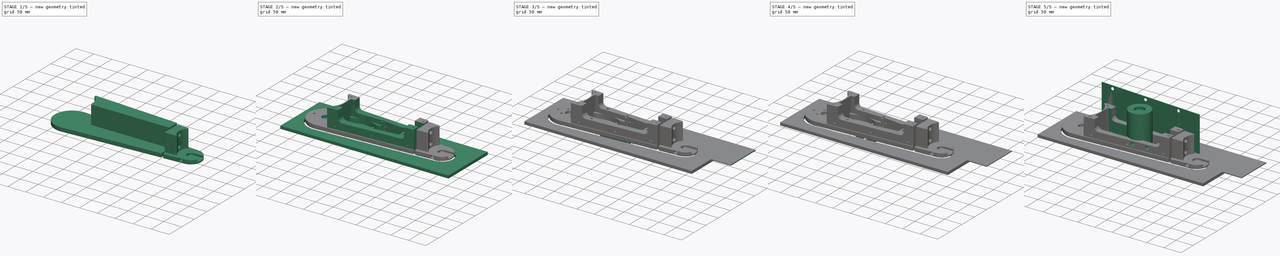
[diagram: build sequence overview — one tinted view per stage of 5, left to right]
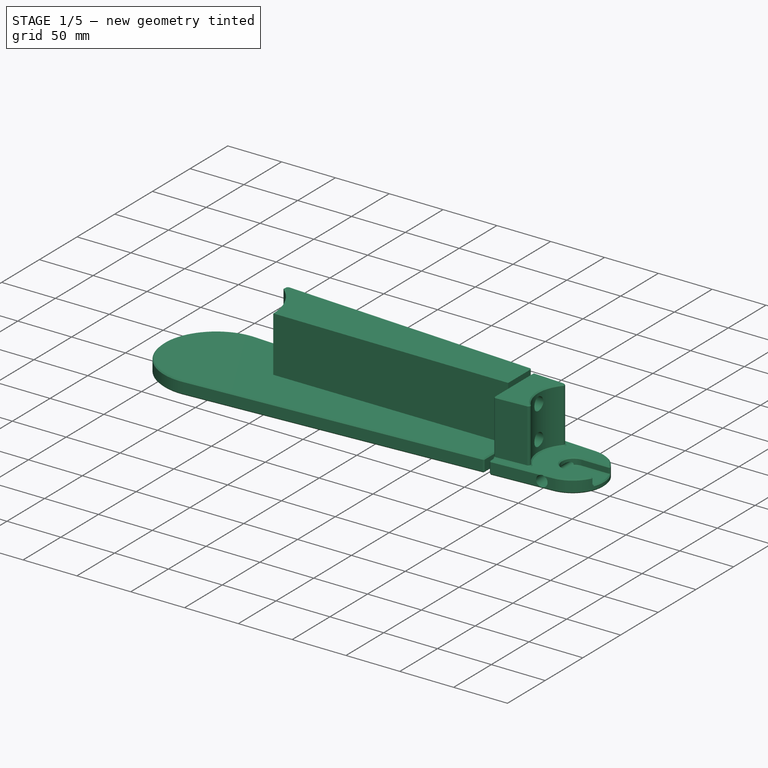
[diagram: stage 1 of 5 — iso view after this stage's code; geometry added in this stage tinted green]
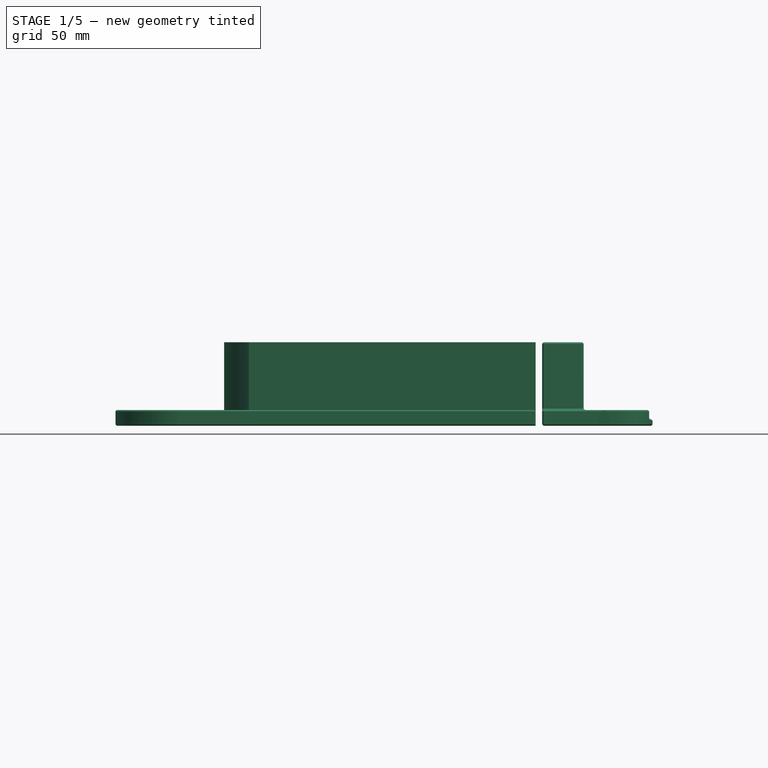
[diagram: stage 1 of 5 — front view after this stage's code; geometry added in this stage tinted green]
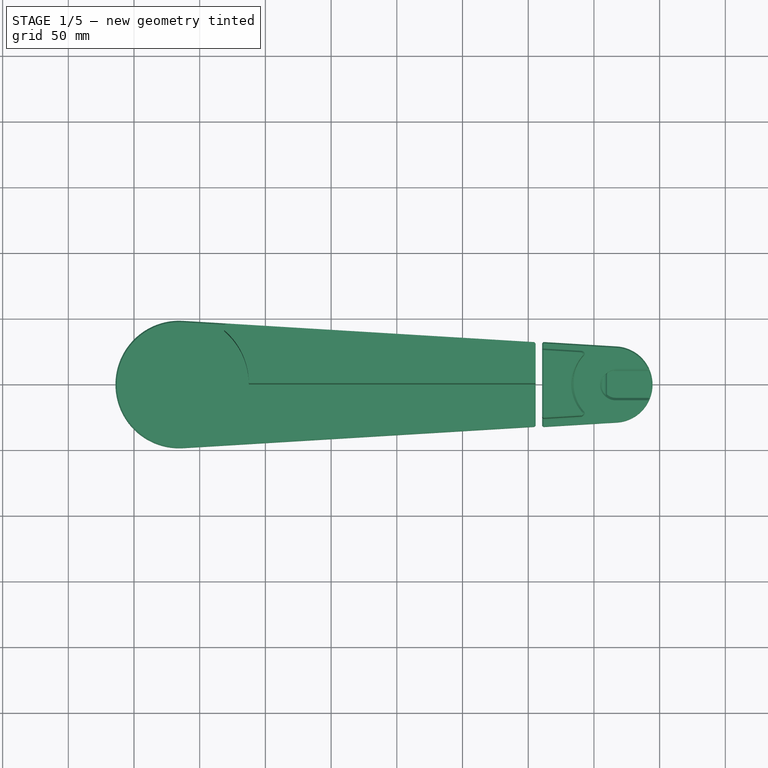
[diagram: stage 1 of 5 — top view after this stage's code; geometry added in this stage tinted green]
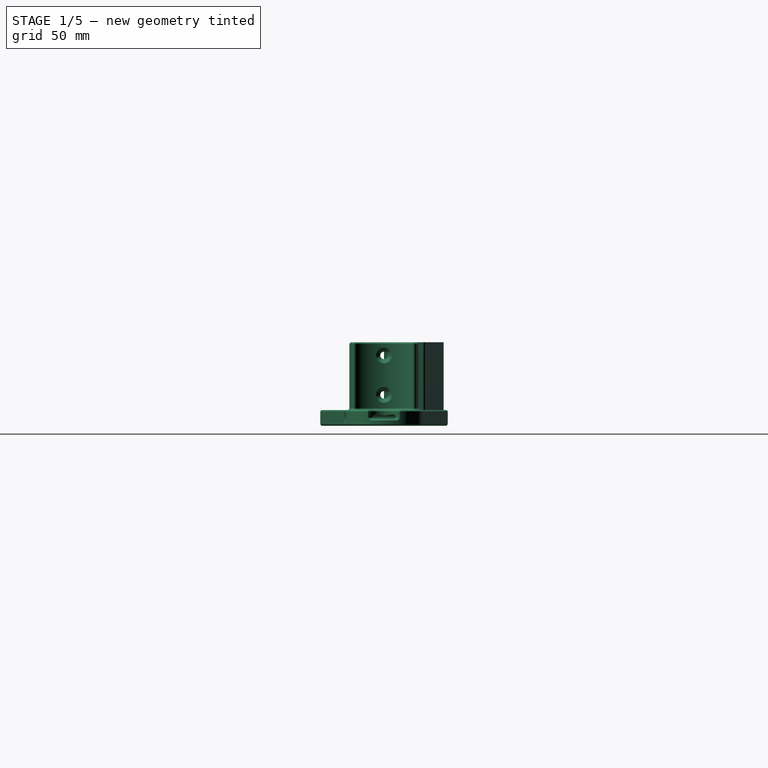
[diagram: stage 1 of 5 — right view after this stage's code; geometry added in this stage tinted green]
FCSTD DOCUMENT  (FreeCAD 1.0R39109 (Git))
Label: belt sander
License: All rights reserved
LicenseURL: http://en.wikipedia.org/wiki/All_rights_reserved
objects: Sketcher::SketchObject×44, PartDesign::Pocket×20, PartDesign::Hole×17, PartDesign::Body×16, PartDesign::SubShapeBinder×14, PartDesign::Pad×14, Part::FeaturePython×6, PartDesign::Mirrored×5, PartDesign::Chamfer×5, Path::FeaturePython×5, PartDesign::Line×3, App::DocumentObjectGroup×3, App::FeaturePython×2, PartDesign::FeatureBase×2, PartDesign::SubtractivePipe×2, PartDesign::Point×1, PartDesign::Plane×1, PartDesign::Revolution×1, Part::Mirroring×1, PartDesign::AdditiveHelix×1, +1 more types
note: 325 computed .brp shape members not serialized (recipe doc carries the construction recipe); baked Part::Feature solids carry a one-line shape summary decoded from their .brp

FEATURE [Sketcher::SketchObject] Sketch  label="Belt sketch"
  ArcFitTolerance = 0
  AttachmentSupport = -> [XY_Plane]
  FullyConstrained = true
  MakeInternals = false
  MapMode = 5
  sketch-geometry (13):
    g0: ArcOfCircle CenterX=-165.616 CenterY=0 CenterZ=0 NormalX=0 NormalY=0 NormalZ=1 AngleXU=0 Radius=50 StartAngle=1.51038 EndAngle=4.77281
    g1: ArcOfCircle CenterX=165.616 CenterY=0 CenterZ=0 NormalX=0 NormalY=0 NormalZ=1 AngleXU=0 Radius=30 StartAngle=4.77281 EndAngle=7.79356
    g2: LineSegment StartX=-162.597 StartY=49.9088 StartZ=0 EndX=167.428 EndY=29.9453 EndZ=0
    g3: LineSegment StartX=167.428 StartY=-29.9453 StartZ=0 EndX=-162.597 EndY=-49.9088 EndZ=0
    g4: LineSegment [constr] StartX=-493.749 StartY=250 StartZ=0 EndX=-330.628 EndY=250 EndZ=0
    g5: LineSegment [constr] StartX=-330.628 StartY=250 StartZ=0 EndX=0 EndY=250 EndZ=0
    g6: LineSegment [constr] StartX=0 StartY=250 StartZ=0 EndX=330.628 EndY=250 EndZ=0
    g7: LineSegment [constr] StartX=330.628 StartY=250 StartZ=0 EndX=421.251 EndY=250 EndZ=0
    g8: LineSegment [constr] StartX=-165.616 StartY=0 StartZ=0 EndX=165.616 EndY=0 EndZ=0
    g9: LineSegment [constr] StartX=-147.178 StartY=-46.476 StartZ=0 EndX=155.32 EndY=-28.1777 EndZ=0
    g10: LineSegment [constr] StartX=-147.178 StartY=-46.476 StartZ=0 EndX=-147.178 EndY=-48.976 EndZ=0
    g11: Circle [constr] CenterX=-165.616 CenterY=0 CenterZ=0 NormalX=0 NormalY=0 NormalZ=1 AngleXU=0 Radius=50
    g12: Circle [constr] CenterX=165.616 CenterY=0 CenterZ=0 NormalX=0 NormalY=0 NormalZ=1 AngleXU=0 Radius=30
  constraints (43):
    c: Tangent(g2,g1) = 1.5708
    c: Tangent(g3,g1) = 1.5708
    c: Tangent(g3,g0) = 1.5708
    c: Tangent(g2,g0) = 1.5708
    c: Distance(g0) = 163.121  'arc1_length'
    c: Horizontal(g4)
    c: Coincident(g5,g4)
    c: Horizontal(g5)
    c: Coincident(g6,g5)
    c: Horizontal(g6)
    c: Coincident(g7,g6)
    c: Horizontal(g7)
    c: DistanceX(g4,g7) = 915
    c: DistanceX(g4,g4) = 163.121
    c: Equal(g2,g5)
    c: Equal(g3,g6)
    c: Distance(g1) = 90.6227  'arc2_length'
    c: DistanceX(g7,g7) = 90.6227
    c: PointOnObject(g5,g-2)
    c: DistanceY(g5) = 250
    c: Coincident(g8,g0)
    c: Coincident(g8,g1)
    c: Distance(g8) = 331.232  'cylinder_distance'
    c: Coincident(g10,g9)
    c: PointOnObject(g10,g3)
    c: Vertical(g10)
    c: DistanceY(g10,g10) = 2.5  'backing_plate_thickness'
    c: DistanceX(g9,g9) = 302.497  'backing_plate_space'
    c: DistanceX(g10,g-1) = 147.178  'backing_plate_xoffset'
    c: Coincident(g11,g0)
    c: Diameter(g11) = 100  'large_diameter'
    c: PointOnObject(g0,g11)
    c: Coincident(g12,g1)
    c: Diameter(g12) = 60  'small_diameter'
    c: PointOnObject(g9,g12)
    c: PointOnObject(g9,g11)
    c: PointOnObject(g1,g12)
    c: Parallel(g3,g9)
    c: Symmetric(g0,g1,g-2)
    c: PointOnObject(g0,g-1)
    c: DistanceX(g0,g-1) = 165.616  'left_axle_offset'
    c: DistanceX(g-1,g1) = 165.616  'right_axle_offset'
    c: Angle(g2,g8) = 0.0604173  'angle'
FEATURE [PartDesign::SubShapeBinder] Binder
  BindCopyOnChange = 0
  BindMode = 0
  ClaimChildren = false
  Context = -> Body [Binder.]
  Fuse = false
  MakeFace = true
  Offset = 0.6
  OffsetFill = false
  OffsetIntersection = false
  OffsetJoinType = 0
  OffsetOpenResult = false
  PartialLoad = false
  Relative = true
  Support = -> [Sketch]
  _Version = 2
FEATURE [PartDesign::Pad] Pad  label="Belt pad"
  Direction = (0,0,1)
  Length = 100
  Length2 = 10
  Profile = -> Binder
  Suppressed = false
  Type = 0
FEATURE [PartDesign::Pocket] Pocket
  BaseFeature = -> Pad
  Direction = (0,0,-1)
  Length = 5
  Length2 = 5
  Profile = -> Sketch
  ReferenceAxis = -> Sketch [N_Axis]
  Reversed = true
  Suppressed = false
  Type = 1
FEATURE [PartDesign::Point] DatumPoint
  AttacherType = Attacher::AttachEnginePoint
  AttachmentSupport = -> [Sketch]
  MapMode = 37
  Placement = pos=(2.41522,-39.927,0) rot=(0,0,1;0rad)
FEATURE [PartDesign::Plane] DatumPlane  label="Belt face plane"
  AttachmentOffset = pos=(0,0,0) rot=(1,0,0;1.5708rad)
  AttachmentSupport = -> [DatumPoint,Sketch]
  Length = 64.2049
  MapMode = 50
  Placement = pos=(2.41522,-39.927,0) rot=(0.999088,0.03019,0.03019;1.57171rad)
  ResizeMode = 0
  Width = 60.3758
FEATURE [PartDesign::Body] Body  label="Belt"
  AllowCompound = false
  Group = -> [Sketch,Binder,Pad,Pocket,DatumPlane,DatumPoint]
  Origin = -> Origin
  Placement = pos=(0,0,13.5) rot=(0,0,1;0rad)
  Tip = -> Pocket
  expr: .Placement.Base.z = 12 mm + dd.BeltClearance
FEATURE [Sketcher::SketchObject] Sketch005  label="Backing plate sketch"
  ArcFitTolerance = 0
  AttachmentSupport = -> [DatumPlane]
  FullyConstrained = true
  MakeInternals = false
  MapMode = 5
  Placement = pos=(2.41522,-39.927,0) rot=(0.999088,0.03019,0.03019;1.57171rad)
  expr: .Constraints.height = <<Belt pad>>.Length + 2 * dd.BeltClearance - 0.4 mm
  expr: .Constraints.length = <<Belt sketch>>.Constraints.backing_plate_space - 7 mm
  expr: .Constraints.x = <<Belt sketch>>.Constraints.backing_plate_xoffset - 2 mm
  expr: .Constraints.y = <<Pad007>>.Length + 0.2 mm
  expr: Constraints[23] = <<Pad007>>.Length + 8 mm
  expr: Constraints[31] = <<Pad007>>.Length + 100 mm + 2 * dd.BeltClearance - 8 mm
  sketch-geometry (14):
    g0: LineSegment StartX=-145.178 StartY=114.8 StartZ=0 EndX=-145.178 EndY=12.2 EndZ=0
    g1: LineSegment StartX=-145.178 StartY=12.2 StartZ=0 EndX=150.32 EndY=12.2 EndZ=0
    g2: LineSegment StartX=150.32 StartY=12.2 StartZ=0 EndX=150.32 EndY=114.8 EndZ=0
    g3: LineSegment StartX=150.32 StartY=114.8 StartZ=0 EndX=-145.178 EndY=114.8 EndZ=0
    g4: Circle CenterX=-112 CenterY=107 CenterZ=0 NormalX=0 NormalY=0 NormalZ=1 AngleXU=0 Radius=3.5
    g5: Circle CenterX=-12 CenterY=107 CenterZ=0 NormalX=0 NormalY=0 NormalZ=1 AngleXU=0 Radius=3.5
    g6: Circle CenterX=88 CenterY=107 CenterZ=0 NormalX=0 NormalY=0 NormalZ=1 AngleXU=0 Radius=3.5
    g7: Circle CenterX=-112 CenterY=20 CenterZ=0 NormalX=0 NormalY=0 NormalZ=1 AngleXU=0 Radius=3.5
    g8: Circle CenterX=-12 CenterY=20 CenterZ=0 NormalX=0 NormalY=0 NormalZ=1 AngleXU=0 Radius=3.5
    g9: Circle CenterX=88 CenterY=20 CenterZ=0 NormalX=0 NormalY=0 NormalZ=1 AngleXU=0 Radius=3.5
    g10: LineSegment [constr] StartX=-112 StartY=20 StartZ=0 EndX=-12 EndY=20 EndZ=0
    g11: LineSegment [constr] StartX=-12 StartY=20 StartZ=0 EndX=88 EndY=20 EndZ=0
    g12: LineSegment [constr] StartX=88 StartY=107 StartZ=0 EndX=-12 EndY=107 EndZ=0
    g13: LineSegment [constr] StartX=-12 StartY=107 StartZ=0 EndX=-112 EndY=107 EndZ=0
  constraints (38):
    c: Coincident(g0,g1)
    c: Coincident(g1,g2)
    c: Coincident(g2,g3)
    c: Coincident(g3,g0)
    c: Vertical(g0)
    c: Vertical(g2)
    c: Horizontal(g1)
    c: DistanceY(g2,g2) = 102.6  'height'
    c: Horizontal(g3)
    c: DistanceX(g0,g-1) = 145.178  'x'
    c: DistanceX(g1,g1) = 295.497  'length'
    c: DistanceY(g-1,g1) = 12.2  'y'
    c: Equal(g7,g4)
    c: Equal(g4,g5)
    c: Equal(g5,g8)
    c: Equal(g8,g6)
    c: Equal(g6,g9)
    c: Horizontal(g7,g8)
    c: Horizontal(g8,g9)
    c: Vertical(g6,g9)
    c: Horizontal(g6,g5)
    c: Horizontal(g4,g5)
    c: DistanceX(g7,g8) = 100
    c: DistanceY(g-1,g8) = 20
    c: Diameter(g7) = 7
    c: DistanceX(g8,g-1) = 12
    c: Coincident(g10,g7)
    c: Coincident(g10,g8)
    c: Coincident(g11,g8)
    c: Coincident(g11,g9)
    c: Equal(g10,g11)
    c: DistanceY(g-1,g6) = 107
    c: Coincident(g12,g6)
    c: Coincident(g12,g5)
    c: Coincident(g13,g5)
    c: Coincident(g13,g4)
    c: Equal(g13,g12)
    c: Vertical(g4,g7)
FEATURE [PartDesign::Pad] Pad005  label="Backing plate"
  Direction = (0.0603806,-0.998175,0)
  Length = 2.5
  Length2 = 10
  Placement = pos=(2.41522,-39.927,0) rot=(0.999088,0.03019,0.03019;1.57171rad)
  Profile = -> Sketch005
  ReferenceAxis = -> Sketch005 [N_Axis]
  Reversed = true
  Suppressed = false
  Type = 0
FEATURE [PartDesign::SubShapeBinder] Binder003
  BindCopyOnChange = 0
  BindMode = 0
  ClaimChildren = false
  Context = -> Body007 [Binder003.]
  Fuse = false
  MakeFace = true
  OffsetFill = false
  OffsetIntersection = false
  OffsetJoinType = 0
  OffsetOpenResult = false
  PartialLoad = false
  Relative = true
  Support = -> [Body[Sketch.]]
  _Version = 2
FEATURE [Sketcher::SketchObject] Sketch009
  ArcFitTolerance = 0
  AttachmentSupport = -> [XY_Plane007]
  ExternalGeometry = -> [Binder003]
  FullyConstrained = true
  MakeInternals = false
  MapMode = 5
  expr: Constraints[3] = <<Belt sketch>>.Constraints.right_axle_offset - <<Belt sketch>>.Constraints.small_diameter / 2 - 30 mm
  expr: Constraints[7] = <<Belt sketch>>.Constraints.large_diameter - 3 mm
  expr: Constraints[8] = <<Belt sketch>>.Constraints.left_axle_offset
  sketch-geometry (4):
    g0: ArcOfCircle CenterX=-165.616 CenterY=-1.4e-15 CenterZ=0 NormalX=0 NormalY=0 NormalZ=1 AngleXU=0 Radius=48.5 StartAngle=1.51038 EndAngle=4.77281
    g1: LineSegment StartX=-162.688 StartY=-48.4115 StartZ=0 EndX=105.616 EndY=-32.1816 EndZ=0
    g2: LineSegment StartX=105.616 StartY=-32.1816 StartZ=0 EndX=105.616 EndY=32.1816 EndZ=0
    g3: LineSegment StartX=105.616 StartY=32.1816 StartZ=0 EndX=-162.688 EndY=48.4115 EndZ=0
  constraints (10):
    c: Coincident(g0,g1)
    c: Coincident(g1,g2)
    c: Coincident(g2,g3)
    c: DistanceX(g-1,g1) = 105.616
    c: Symmetric(g0,g0,g-1)
    c: Symmetric(g1,g2,g-1)
    c: Tangent(g0,g3) = -1.5708
    c: Diameter(g0) = 97
    c: DistanceX(g0,g-1) = 165.616
    c: Parallel(g3,g-3)
FEATURE [PartDesign::Pad] Pad007
  Direction = (0,0,1)
  Length = 12
  Length2 = 10
  Profile = -> Sketch009
  ReferenceAxis = -> Sketch009 [N_Axis]
  Suppressed = false
  Type = 0
FEATURE [Sketcher::SketchObject] Sketch011
  ArcFitTolerance = 0
  AttachmentSupport = -> [XY_Plane007]
  FullyConstrained = true
  MakeInternals = false
  MapMode = 5
  expr: Constraints[1] = <<Belt sketch>>.Constraints.large_diameter + 6 mm
  expr: Constraints[23] = <<Backing plate>>.Length
  expr: Constraints[24] = <<Belt sketch>>.Constraints.left_axle_offset
  expr: Constraints[25] = <<Belt sketch>>.Constraints.large_diameter
  expr: Constraints[27] = <<Belt sketch>>.Constraints.small_diameter
  expr: Constraints[28] = <<Belt sketch>>.Constraints.right_axle_offset
  sketch-geometry (13):
    g0: LineSegment StartX=105.616 StartY=0 StartZ=0 EndX=105.616 EndY=29.2971 EndZ=0
    g1: LineSegment StartX=103.737 StartY=31.2934 StartZ=0 EndX=-129.332 EndY=45.392 EndZ=0
    g2: ArcOfCircle CenterX=-165.616 CenterY=0 CenterZ=0 NormalX=0 NormalY=0 NormalZ=1 AngleXU=0 Radius=53 StartAngle=0 EndAngle=0.870317
    g3: LineSegment StartX=-131.453 StartY=40.5203 StartZ=0 EndX=-131.453 EndY=43.3956 EndZ=0
    g4: ArcOfCircle CenterX=-129.453 CenterY=43.3956 CenterZ=0 NormalX=0 NormalY=0 NormalZ=1 AngleXU=0 Radius=2 StartAngle=1.51038 EndAngle=3.14159
    g5: GeomPoint [constr] X=-131.453 Y=45.5203 Z=0
    g6: ArcOfCircle CenterX=103.616 CenterY=29.2971 CenterZ=0 NormalX=0 NormalY=0 NormalZ=1 AngleXU=0 Radius=2 StartAngle=0 EndAngle=1.51038
    g7: GeomPoint [constr] X=105.616 Y=31.1797 Z=0
    g8: Circle [constr] CenterX=-165.616 CenterY=0 CenterZ=0 NormalX=0 NormalY=0 NormalZ=1 AngleXU=0 Radius=50
    g9: LineSegment StartX=-112.616 StartY=0 StartZ=0 EndX=105.616 EndY=0 EndZ=0
    g10: LineSegment [constr] StartX=-129.332 StartY=45.392 StartZ=0 EndX=-129.181 EndY=47.8874 EndZ=0
    g11: Circle [constr] CenterX=165.616 CenterY=0 CenterZ=0 NormalX=0 NormalY=0 NormalZ=1 AngleXU=0 Radius=30
    g12: LineSegment [constr] StartX=-162.597 StartY=49.9088 StartZ=0 EndX=167.428 EndY=29.9453 EndZ=0
  constraints (34):
    c: PointOnObject(g2,g-1)
    c: Diameter(g2) = 106
    c: Coincident(g3,g2)
    c: Vertical(g3)
    c: DistanceY(g3,g5) = 5
    c: PointOnObject(g5,g1)
    c: PointOnObject(g5,g3)
    c: Tangent(g1,g4) = -1.5708
    c: Tangent(g3,g4) = 1.5708
    c: PointOnObject(g7,g0)
    c: PointOnObject(g7,g1)
    c: Tangent(g0,g6) = -1.5708
    c: Tangent(g1,g6) = -1.5708
    c: Radius(g6) = 2
    c: Coincident(g2,g8)
    c: Equal(g6,g4)
    c: Coincident(g9,g2)
    c: PointOnObject(g2,g-1)
    c: Coincident(g0,g9)
    c: Horizontal(g9)
    c: Vertical(g0)
    c: Coincident(g10,g1)
    c: Perpendicular(g1,g10)
    c: Distance(g10) = 2.5
    c: DistanceX(g2,g-1) = 165.616
    c: Diameter(g8) = 100
    c: PointOnObject(g11,g-1)
    c: Diameter(g11) = 60
    c: DistanceX(g-1,g11) = 165.616
    c: Tangent(g12,g8) = 1.5708
    c: Tangent(g12,g11) = 1.5708
    c: Parallel(g12,g1)
    c: DistanceX(g0,g11) = 60
    c: PointOnObject(g10,g12)
FEATURE [Sketcher::SketchObject] Sketch018  label="Arm sketch"
  ArcFitTolerance = 0
  AttachmentSupport = -> [XZ_Plane006]
  FullyConstrained = true
  MakeInternals = false
  MapMode = 5
  Placement = pos=(0,0,0) rot=(1,0,0;1.5708rad)
  expr: .Constraints.neck_height = <<Belt pad>>.Length + 2 * dd.BeltClearance - 0.2 mm
  expr: Constraints[3] = <<Belt sketch>>.Constraints.cylinder_distance / 2 - <<Belt sketch>>.Constraints.small_diameter / 2 - 25 mm
  sketch-geometry (14):
    g0: ArcOfCircle CenterX=64.1162 CenterY=-50.4 CenterZ=0 NormalX=0 NormalY=0 NormalZ=1 AngleXU=0 Radius=1 StartAngle=3.14159 EndAngle=4.71239
    g1: LineSegment StartX=110.616 StartY=-51.4 StartZ=0 EndX=110.616 EndY=51.4 EndZ=0
    g2: ArcOfCircle CenterX=64.1162 CenterY=50.4 CenterZ=0 NormalX=0 NormalY=0 NormalZ=1 AngleXU=0 Radius=1 StartAngle=1.5708 EndAngle=3.14159
    g3: LineSegment StartX=64.1162 StartY=-51.4 StartZ=0 EndX=110.616 EndY=-51.4 EndZ=0
    g4: LineSegment StartX=64.1162 StartY=51.4 StartZ=0 EndX=110.616 EndY=51.4 EndZ=0
    g5: LineSegment StartX=63.1162 StartY=50.4 StartZ=0 EndX=63.1162 EndY=31.3 EndZ=0
    g6: LineSegment StartX=62.6162 StartY=30.8 StartZ=0 EndX=-7.08592 EndY=30.8 EndZ=0
    g7: ArcOfCircle CenterX=62.6162 CenterY=31.3 CenterZ=0 NormalX=0 NormalY=0 NormalZ=1 AngleXU=0 Radius=0.5 StartAngle=4.71239 EndAngle=6.28319
    g8: GeomPoint [constr] X=63.1162 Y=30.8 Z=0
    g9: ArcOfCircle CenterX=-7.08592 CenterY=25.8 CenterZ=0 NormalX=0 NormalY=0 NormalZ=1 AngleXU=0 Radius=5 StartAngle=1.5708 EndAngle=4.23486
    g10: GeomPoint [constr] X=-27.6276 Y=30.8 Z=0
    g11: LineSegment StartX=-9.38385 StartY=21.3593 StartZ=0 EndX=60.4141 EndY=-14.7593 EndZ=0
    g12: LineSegment StartX=63.1162 StartY=-19.2 StartZ=0 EndX=63.1162 EndY=-50.4 EndZ=0
    g13: ArcOfCircle CenterX=58.1162 CenterY=-19.2 CenterZ=0 NormalX=0 NormalY=0 NormalZ=1 AngleXU=0 Radius=5 StartAngle=2e-16 EndAngle=1.09327
  constraints (35):
    c: DistanceY(g1,g1) = 102.8  'neck_height'
    c: Radius(g0) = 1
    c: DistanceX(g12,g1) = 47.5  'length'
    c: DistanceX(g-1,g1) = 110.616
    c: Symmetric(g1,g1,g-1)
    c: DistanceX(g-1,g12) = 63.1162  'x'
    c: Coincident(g3,g1)
    c: Horizontal(g3)
    c: Coincident(g4,g1)
    c: Tangent(g4,g2) = 1.5708
    c: Horizontal(g6)
    c: Tangent(g3,g0) = -1.5708
    c: Equal(g0,g2)
    c: Horizontal(g4)
    c: Tangent(g2,g5) = -1.5708
    c: Vertical(g5)
    c: PointOnObject(g8,g5)
    c: PointOnObject(g8,g6)
    c: Tangent(g5,g7) = 1.5708
    c: Tangent(g6,g7) = 1.5708
    c: PointOnObject(g10,g6)
    c: Tangent(g6,g9) = -1.5708
    c: Radius(g7) = 0.5
    c: PointOnObject(g10,g11)
    c: Vertical(g12)
    c: Tangent(g12,g13) = 1.5708
    c: Tangent(g11,g9) = -1.5708
    c: Equal(g4,g3)
    c: DistanceX(g9,g1) = 120
    c: Tangent(g12,g0) = -1.5708
    c: Tangent(g11,g13) = 1.5708
    c: Radius(g9) = 5
    c: DistanceY(g12,g6) = 50
    c: DistanceY(g-1,g6) = 30.8
    c: Radius(g13) = 5
FEATURE [PartDesign::Pad] Pad011  label="Arm"
  Direction = (0,-1,2e-16)
  Length = 22
  Length2 = 10
  Midplane = true
  Placement = pos=(0,0,0) rot=(1,0,0;1.5708rad)
  Profile = -> Sketch018
  ReferenceAxis = -> Sketch018 [N_Axis]
  Suppressed = false
  Type = 0
FEATURE [PartDesign::Body] Body033  label="Spring carriage"
  AllowCompound = false
  Group = -> [Sketch134,Pad040,Pocket051,Sketch138,Sketch135,Pocket049,Hole028,Sketch137,Pocket050,Sketch140,DatumLine001,DatumLine002,Pocket054]
  Origin = -> Origin052
  Tip = -> Pocket054
FEATURE [App::Part] Part  label="Lever Block"
  Group = -> [Body036,Body032,Body031,Body035,Body033,Washer,Body037,Screw001,Body034]
  Origin = -> Origin058
  Placement = pos=(-4.5,0,119) rot=(0,0,1;3.14159rad)
FEATURE [PartDesign::SubShapeBinder] Binder027  label="Lever mounting hole binder"
  BindCopyOnChange = 0
  BindMode = 0
  ClaimChildren = false
  Context = -> Body013 [Binder027.]
  Fuse = false
  MakeFace = true
  OffsetFill = false
  OffsetIntersection = false
  OffsetJoinType = 0
  OffsetOpenResult = false
  PartialLoad = false
  Placement = pos=(0,-40,0) rot=(0,0,1;0rad)
  Relative = true
  Support = -> [Part[Body033.Sketch140.]]
  _Version = 2
FEATURE [Sketcher::SketchObject] Sketch158
  ArcFitTolerance = 0
  AttachmentOffset = pos=(0,0,12) rot=(0,0,1;0rad)
  AttachmentSupport = -> [XY_Plane007]
  FullyConstrained = true
  MakeInternals = false
  MapMode = 5
  Placement = pos=(0,0,12) rot=(0,0,1;0rad)
  expr: .AttachmentOffset.Base.z = <<Pad007>>.Length
  expr: Constraints[2] = <<Belt sketch>>.Constraints.left_axle_offset
  sketch-geometry (1):
    g0: Circle CenterX=-165.616 CenterY=0 CenterZ=0 NormalX=0 NormalY=0 NormalZ=1 AngleXU=0 Radius=11.1
  constraints (3):
    c: PointOnObject(g0,g-1)
    c: Diameter(g0) = 22.2
    c: DistanceX(g0,g-1) = 165.616
FEATURE [Sketcher::SketchObject] Sketch174
  ArcFitTolerance = 0
  AttachmentSupport = -> [XY_Plane007]
  FullyConstrained = true
  MakeInternals = false
  MapMode = 5
  expr: Constraints[0] = <<Belt sketch>>.Constraints.left_axle_offset
  sketch-geometry (7):
    g0: Circle [constr] CenterX=-165.616 CenterY=0 CenterZ=0 NormalX=0 NormalY=0 NormalZ=1 AngleXU=0 Radius=20
    g1: Circle CenterX=-151.474 CenterY=14.1421 CenterZ=0 NormalX=0 NormalY=0 NormalZ=1 AngleXU=0 Radius=2.75
    g2: Circle CenterX=-179.758 CenterY=-14.1421 CenterZ=0 NormalX=0 NormalY=0 NormalZ=1 AngleXU=0 Radius=2.75
    g3: Circle CenterX=-151.474 CenterY=-14.1421 CenterZ=0 NormalX=0 NormalY=0 NormalZ=1 AngleXU=0 Radius=2.75
    g4: Circle CenterX=-179.758 CenterY=14.1421 CenterZ=0 NormalX=0 NormalY=0 NormalZ=1 AngleXU=0 Radius=2.75
    g5: LineSegment [constr] StartX=-151.474 StartY=14.1421 StartZ=0 EndX=-179.758 EndY=-14.1421 EndZ=0
    g6: LineSegment [constr] StartX=-151.474 StartY=-14.1421 StartZ=0 EndX=-179.758 EndY=14.1421 EndZ=0
  constraints (19):
    c: DistanceX(g0,g-1) = 165.616
    c: Diameter(g0) = 40
    c: PointOnObject(g2,g0)
    c: PointOnObject(g3,g0)
    c: PointOnObject(g4,g0)
    c: Equal(g3,g1)
    c: Equal(g1,g4)
    c: Equal(g4,g2)
    c: Diameter(g1) = 5.5
    c: PointOnObject(g1,g0)
    c: PointOnObject(g0,g-1)
    c: Coincident(g5,g1)
    c: Coincident(g5,g2)
    c: PointOnObject(g0,g5)
    c: Angle(g-1,g5) = 0.785398
    c: Coincident(g6,g3)
    c: Coincident(g6,g4)
    c: PointOnObject(g0,g6)
    c: Perpendicular(g5,g6)
FEATURE [PartDesign::SubShapeBinder] Binder029  label="Belt sketch binder"
  BindCopyOnChange = 0
  BindMode = 0
  ClaimChildren = false
  Context = -> Body039 [Binder029.]
  Fuse = false
  MakeFace = true
  OffsetFill = false
  OffsetIntersection = false
  OffsetJoinType = 0
  OffsetOpenResult = false
  PartialLoad = false
  Relative = true
  Support = -> [Body[Sketch.]]
  _Version = 2
FEATURE [Sketcher::SketchObject] Sketch175
  ArcFitTolerance = 0
  AttachmentSupport = -> [XY_Plane060]
  ExternalGeometry = -> [Binder029]
  FullyConstrained = true
  MakeInternals = false
  MapMode = 5
  expr: Constraints[5] = <<Belt sketch>>.Constraints.right_axle_offset
  expr: Constraints[6] = <<Belt sketch>>.Constraints.small_diameter - 2 mm
  sketch-geometry (4):
    g0: LineSegment StartX=110.616 StartY=32.38 StartZ=0 EndX=110.616 EndY=-32.38 EndZ=0
    g1: LineSegment StartX=110.616 StartY=-32.38 StartZ=0 EndX=167.367 EndY=-28.9471 EndZ=0
    g2: LineSegment StartX=167.367 StartY=28.9471 StartZ=0 EndX=110.616 EndY=32.38 EndZ=0
    g3: ArcOfCircle CenterX=165.616 CenterY=0 CenterZ=0 NormalX=0 NormalY=0 NormalZ=1 AngleXU=0 Radius=29 StartAngle=4.77281 EndAngle=7.79356
  constraints (10):
    c: Coincident(g0,g1)
    c: Coincident(g2,g0)
    c: Tangent(g3,g1) = -1.5708
    c: Tangent(g3,g2) = -1.5708
    c: Symmetric(g0,g0,g-1)
    c: DistanceX(g-1,g3) = 165.616
    c: Diameter(g3) = 58
    c: PointOnObject(g3,g-1)
    c: DistanceX(g0,g3) = 55
    c: Parallel(g2,g-3)
FEATURE [PartDesign::Pad] Pad045
  Direction = (0,0,1)
  Length = 12
  Length2 = 10
  Profile = -> Sketch175
  ReferenceAxis = -> Sketch175 [N_Axis]
  Suppressed = false
  Type = 0
FEATURE [Sketcher::SketchObject] Sketch176  label="Bearing pocket sketch"
  ArcFitTolerance = 0
  AttachmentOffset = pos=(0,0,5) rot=(0,0,1;0rad)
  AttachmentSupport = -> [XY_Plane060]
  FullyConstrained = true
  MakeInternals = false
  MapMode = 5
  Placement = pos=(0,0,5) rot=(0,0,1;0rad)
  expr: .AttachmentOffset.Base.z = <<Pad045>>.Length - 7 mm
  expr: Constraints[7] = <<Belt sketch>>.Constraints.small_diameter
  expr: Constraints[8] = <<Belt sketch>>.Constraints.right_axle_offset + 1 mm
  sketch-geometry (4):
    g0: ArcOfCircle CenterX=166.616 CenterY=2e-16 CenterZ=0 NormalX=0 NormalY=0 NormalZ=1 AngleXU=0 Radius=11.05 StartAngle=1.5708 EndAngle=4.71239
    g1: LineSegment StartX=166.616 StartY=-11.05 StartZ=0 EndX=226.616 EndY=-11.05 EndZ=0
    g2: LineSegment StartX=166.616 StartY=11.05 StartZ=0 EndX=226.616 EndY=11.05 EndZ=0
    g3: LineSegment StartX=226.616 StartY=11.05 StartZ=0 EndX=226.616 EndY=-11.05 EndZ=0
  constraints (10):
    c: Horizontal(g1)
    c: Coincident(g3,g2)
    c: Coincident(g3,g1)
    c: Symmetric(g2,g1,g-1)
    c: Tangent(g1,g0) = -1.5708
    c: Tangent(g0,g2) = 1.5708
    c: Diameter(g0) = 22.1  'diameter'
    c: DistanceX(g1,g1) = 60
    c: DistanceX(g-1,g0) = 166.616
    c: Horizontal(g2)
FEATURE [PartDesign::Pocket] Pocket056  label="Bearing pocket"
  BaseFeature = -> Pad045
  Direction = (0,0,-1)
  Length = 5
  Length2 = 5
  Profile = -> Sketch176
  ReferenceAxis = -> Sketch176 [N_Axis]
  Reversed = true
  Suppressed = false
  Type = 1
FEATURE [Sketcher::SketchObject] Sketch177
  ArcFitTolerance = 0
  AttachmentSupport = -> [XY_Plane060]
  FullyConstrained = false
  MakeInternals = false
  MapMode = 5
  expr: Constraints[3] = <<Belt sketch>>.Constraints.small_diameter
  expr: Constraints[4] = <<Belt sketch>>.Constraints.right_axle_offset
  expr: Constraints[6] = <<Belt sketch>>.Constraints.small_diameter + 4 mm
  sketch-geometry (7):
    g0: LineSegment StartX=110.616 StartY=-26.38 StartZ=0 EndX=110.616 EndY=26.38 EndZ=0
    g1: LineSegment StartX=110.616 StartY=26.38 StartZ=0 EndX=140.323 EndY=24.583 EndZ=0
    g2: LineSegment StartX=140.323 StartY=-24.583 StartZ=0 EndX=110.616 EndY=-26.38 EndZ=0
    g3: Circle [constr] CenterX=165.616 CenterY=-7.1e-15 CenterZ=0 NormalX=0 NormalY=0 NormalZ=1 AngleXU=0 Radius=30
    g4: ArcOfCircle CenterX=165.616 CenterY=-7.1e-15 CenterZ=0 NormalX=0 NormalY=0 NormalZ=1 AngleXU=0 Radius=32 StartAngle=2.41502 EndAngle=3.86817
    g5: ArcOfCircle CenterX=140.203 CenterY=22.5866 CenterZ=0 NormalX=0 NormalY=0 NormalZ=1 AngleXU=0 Radius=2 StartAngle=5.55661 EndAngle=7.79356
    g6: ArcOfCircle CenterX=140.203 CenterY=-22.5866 CenterZ=0 NormalX=0 NormalY=0 NormalZ=1 AngleXU=0 Radius=2 StartAngle=4.77281 EndAngle=7.00976
  constraints (14):
    c: Coincident(g0,g1)
    c: Coincident(g2,g0)
    c: Symmetric(g0,g0,g-1)
    c: Diameter(g3) = 60
    c: DistanceX(g-1,g3) = 165.616
    c: Coincident(g4,g3)
    c: Diameter(g4) = 64
    c: Tangent(g4,g5) = 1.5708
    c: Tangent(g1,g5) = 1.5708
    c: Tangent(g2,g6) = 1.5708
    c: Tangent(g4,g6) = 1.5708
    c: Equal(g5,g6)
    c: Symmetric(g4,g4,g-1)
    c: Radius(g5) = 2
FEATURE [PartDesign::Pad] Pad046
  BaseFeature = -> Pocket056
  Direction = (0,0,1)
  Length = 63.5
  Length2 = 10
  Profile = -> Sketch177
  ReferenceAxis = -> Sketch177 [N_Axis]
  Refine = true
  Suppressed = false
  Type = 0
  expr: Length = <<Pad045>>.Length + dd.BeltClearance + dd.RollerHeight / 2
FEATURE [Sketcher::SketchObject] Sketch180  label="Arm mounting hole sketch"
  ArcFitTolerance = 0
  AttachmentOffset = pos=(0,0,65.1162) rot=(0,0,1;0rad)
  AttachmentSupport = -> [YZ_Plane006]
  FullyConstrained = true
  MakeInternals = false
  MapMode = 5
  Placement = pos=(65.1162,0,0) rot=(0.57735,0.57735,0.57735;2.0944rad)
  expr: .AttachmentOffset.Base.z = <<Arm sketch>>.Constraints.x + 2 mm
  sketch-geometry (4):
    g0: Circle CenterX=0 CenterY=-10 CenterZ=0 NormalX=0 NormalY=0 NormalZ=1 AngleXU=0 Radius=2.85
    g1: Circle CenterX=0 CenterY=-40 CenterZ=0 NormalX=0 NormalY=0 NormalZ=1 AngleXU=0 Radius=2.85
    g2: Circle CenterX=0 CenterY=10 CenterZ=0 NormalX=0 NormalY=0 NormalZ=1 AngleXU=0 Radius=2.85
    g3: Circle CenterX=0 CenterY=40 CenterZ=0 NormalX=0 NormalY=0 NormalZ=1 AngleXU=0 Radius=2.85
  constraints (10):
    c: PointOnObject(g0,g-2)
    c: PointOnObject(g1,g-2)
    c: Equal(g2,g3)
    c: Equal(g3,g0)
    c: Equal(g0,g1)
    c: DistanceY(g2,g3) = 30
    c: DistanceY(g0,g2) = 20
    c: Symmetric(g2,g0,g-1)
    c: Symmetric(g1,g3,g-1)
    c: Diameter(g1) = 5.7
FEATURE [PartDesign::Hole] Hole040  label="Arm mounting holes"
  BaseFeature = -> Pad011
  CustomThreadClearance = 0
  Depth = 326.38
  DepthType = 1
  Diameter = 4.8
  DrillForDepth = false
  DrillPoint = 1
  DrillPointAngle = 118
  HoleCutCountersinkAngle = 90
  HoleCutCustomValues = false
  HoleCutDepth = 0
  HoleCutDiameter = 11
  HoleCutType = 0
  ModelThread = false
  Placement = pos=(0,0,0) rot=(1,0,0;1.5708rad)
  Profile = -> Sketch180
  Reversed = true
  Suppressed = false
  Tapered = false
  TaperedAngle = 90
  ThreadClass = 0
  ThreadDepth = 326.38
  ThreadDepthType = 0
  ThreadDirection = 0
  ThreadFit = 0
  ThreadSize = 0
  ThreadType = 0
  Threaded = false
  UseCustomThreadClearance = false
FEATURE [PartDesign::SubShapeBinder] Binder030  label="Mounting hole binder"
  BindCopyOnChange = 0
  BindMode = 0
  ClaimChildren = false
  Context = -> Body039 [Hole041.Binder030.]
  Fuse = false
  MakeFace = true
  OffsetFill = false
  OffsetIntersection = false
  OffsetJoinType = 0
  OffsetOpenResult = false
  PartialLoad = false
  Placement = pos=(70.5,0,0) rot=(0,0,1;0rad)
  Relative = true
  Support = -> [Body006[Sketch180.]]
  _Version = 2
  expr: .Placement.Base.x = -<<Arm mounting hole sketch>>.Placement.Base.x + <<Belt sketch>>.Constraints.right_axle_offset - <<Belt sketch>>.Constraints.small_diameter / 2
FEATURE [PartDesign::Chamfer] Chamfer
  Angle = 45
  Base = -> Hole040 [Edge36,Edge37,Edge14,Edge23,Edge31,Edge13,Edge22,?Edge14,?Edge22,Edge2,?Edge41,Edge42,?Edge40,?Edge5,Edge9,Edge11,Edge12,Edge10,Edge20,Edge21,Edge30,Edge32,Edge33,Edge34,Edge35,Edge8,?Edge55,Edge43,?Edge56,?Edge62,?Edge59,?Edge64,?Edge31,Edge45,?Edge47,?Edge48,?Edge49,?Edge50]
  BaseFeature = -> Hole040
  ChamferType = 0
  FlipDirection = false
  Placement = pos=(0,0,0) rot=(1,0,0;1.5708rad)
  Size = 0.5
  Size2 = 1
  SupportTransform = false
  Suppressed = false
  UseAllEdges = true
FEATURE [PartDesign::Body] Body006  label="Small roller holder arm"
  AllowCompound = false
  Group = -> [Sketch018,Pad011,Sketch180,Hole040,Chamfer]
  Origin = -> Origin006
  Placement = pos=(0,0,63.5) rot=(0,0,1;0rad)
  Tip = -> Chamfer
  expr: .Placement.Base.z = <<Pad045>>.Length + dd.BeltClearance + dd.RollerHeight / 2
FEATURE [PartDesign::Chamfer] Chamfer005
  Angle = 45
  Base = -> Pad046 [?Edge1,?Edge2,?Edge3,?Edge4,?Edge5,?Edge6,?Edge7,?Edge8,?Edge9,?Edge10,?Edge11,?Edge12,?Edge13,?Edge14,?Edge15,?Edge16,?Edge17,?Edge18,?Edge19,?Edge20,?Edge21,?Edge22,?Edge23,?Edge24,?Edge25,?Edge26,?Edge27,?Edge28,?Edge29,?Edge30,?Edge31,?Edge32,?Edge33,?Edge34,?Edge35,?Edge36,?Edge37,?Edge38,?Edge39,?Edge40,+2 more]
  BaseFeature = -> Pad046
  ChamferType = 0
  FlipDirection = false
  Size = 1
  Size2 = 1
  SupportTransform = false
  Suppressed = false
  UseAllEdges = true
FEATURE [PartDesign::Hole] Hole041  label="Arm mounting holes001"
  BaseFeature = -> Chamfer005
  CustomThreadClearance = 0
  Depth = 303.3
  DepthType = 1
  Diameter = 5.7
  DrillForDepth = false
  DrillPoint = 0
  DrillPointAngle = 118
  HoleCutCountersinkAngle = 90
  HoleCutCustomValues = false
  HoleCutDepth = 14
  HoleCutDiameter = 12
  HoleCutType = 3
  ModelThread = false
  Profile = -> Binder030
  Suppressed = false
  Tapered = false
  TaperedAngle = 90
  ThreadClass = 0
  ThreadDepth = 303.3
  ThreadDepthType = 0
  ThreadDirection = 0
  ThreadFit = 0
  ThreadSize = 0
  ThreadType = 0
  Threaded = false
  UseCustomThreadClearance = false
FEATURE [PartDesign::Body] Body009  label="Base plate template"
  AllowCompound = false
  Group = -> [Sketch031,Pad013,Binder031,Pocket057]
  Origin = -> Origin009
  Tip = -> Pocket057
FEATURE [Sketcher::SketchObject] Sketch181  label="Unit mounting hole left sketch"
  ArcFitTolerance = 0
  AttachmentOffset = pos=(0,0,12) rot=(0,0,1;0rad)
  AttachmentSupport = -> [XY_Plane007]
  FullyConstrained = true
  MakeInternals = false
  MapMode = 5
  Placement = pos=(0,0,12) rot=(0,0,1;0rad)
  expr: .AttachmentOffset.Base.z = <<Pad007>>.Length
  expr: .Constraints.x = <<Belt sketch>>.Constraints.left_axle_offset + <<Belt sketch>>.Constraints.large_diameter * 1 / 3
  sketch-geometry (1):
    g0: Circle CenterX=-198.949 CenterY=0 CenterZ=0 NormalX=0 NormalY=0 NormalZ=1 AngleXU=0 Radius=3
  constraints (3):
    c: Diameter(g0) = 6
    c: DistanceX(g0,g-1) = 198.949  'x'
    c: PointOnObject(g0,g-1)
FEATURE [PartDesign::Chamfer] Chamfer006
  Angle = 45
  Base = -> Pad007 [Edge1,Edge2,Edge3,Edge4,Edge5,Edge6,Edge7,Edge8,Edge9,Edge10,Edge11,Edge12]
  BaseFeature = -> Pad007
  ChamferType = 0
  FlipDirection = false
  Size = 1
  Size2 = 1
  SupportTransform = false
  Suppressed = false
  UseAllEdges = true
FEATURE [PartDesign::Pad] Pad009  label="Mounting pad"
  BaseFeature = -> Chamfer006
  Direction = (0,0,1)
  Length = 63.5
  Length2 = 10
  Profile = -> Sketch011
  ReferenceAxis = -> Sketch011 [N_Axis]
  Suppressed = false
  Type = 0
  expr: Length = <<Pad007>>.Length + dd.BeltClearance + dd.RollerHeight / 2
FEATURE [PartDesign::Body] Body007  label="Belt unit base"
  AllowCompound = false
  Group = -> [Sketch009,Binder003,Pad007,Chamfer006,Sketch011,Pad009,Hole036,Mirrored001,Hole024,Mirrored005,Pocket041,Pocket026,Binder007,Binder019,Hole006,Pocket038,Mirrored006,Pocket025,Hole042,Sketch024,Hole003,Hole005,Sketch028,Sketch038,Sketch044,Sketch076,Sketch109,Sketch110,Sketch111,SubtractivePipe001,Sketch113,Sketch114,Pocket042,Sketch158,Sketch174,Hole037,Sketch181]
  Origin = -> Origin007
  Tip = -> Hole037
FEATURE [Sketcher::SketchObject] Sketch178  label="Belt aligner screw hole sketch"
  ArcFitTolerance = 0
  AttachmentOffset = pos=(0,0,35) rot=(0,0,1;0rad)
  AttachmentSupport = -> [XZ_Plane060]
  FullyConstrained = true
  MakeInternals = false
  MapMode = 5
  Placement = pos=(0,-35,7.8e-15) rot=(1,0,0;1.5708rad)
  expr: .AttachmentOffset.Base.z = <<Belt sketch>>.Constraints.small_diameter / 2 + 5 mm
  expr: Constraints[0] = <<Pad045>>.Length - 5.8 mm
  expr: Constraints[2] = <<Belt sketch>>.Constraints.right_axle_offset - <<Bearing pocket sketch>>.Constraints.diameter / 2 + 3 mm
  sketch-geometry (1):
    g0: Circle CenterX=157.566 CenterY=6.2 CenterZ=0 NormalX=0 NormalY=0 NormalZ=1 AngleXU=0 Radius=3.05
  constraints (3):
    c: DistanceY(g-1,g0) = 6.2
    c: Diameter(g0) = 6.1
    c: DistanceX(g-1,g0) = 157.566
FEATURE [PartDesign::Hole] Hole043  label="Belt aligner screw hole"
  BaseFeature = -> Hole041
  CustomThreadClearance = 0
  Depth = 57
  DepthType = 0
  Diameter = 5.1
  DrillForDepth = false
  DrillPoint = 0
  DrillPointAngle = 118
  HoleCutCountersinkAngle = 90
  HoleCutCustomValues = false
  HoleCutDepth = 17
  HoleCutDiameter = 10.2
  HoleCutType = 1
  ModelThread = false
  Profile = -> Sketch178
  Suppressed = false
  Tapered = false
  TaperedAngle = 90
  ThreadClass = 0
  ThreadDepth = 57
  ThreadDepthType = 0
  ThreadDirection = 0
  ThreadFit = 0
  ThreadSize = 0
  ThreadType = 0
  Threaded = false
  UseCustomThreadClearance = false
  expr: Depth = <<Belt sketch>>.Constraints.small_diameter - 3 mm
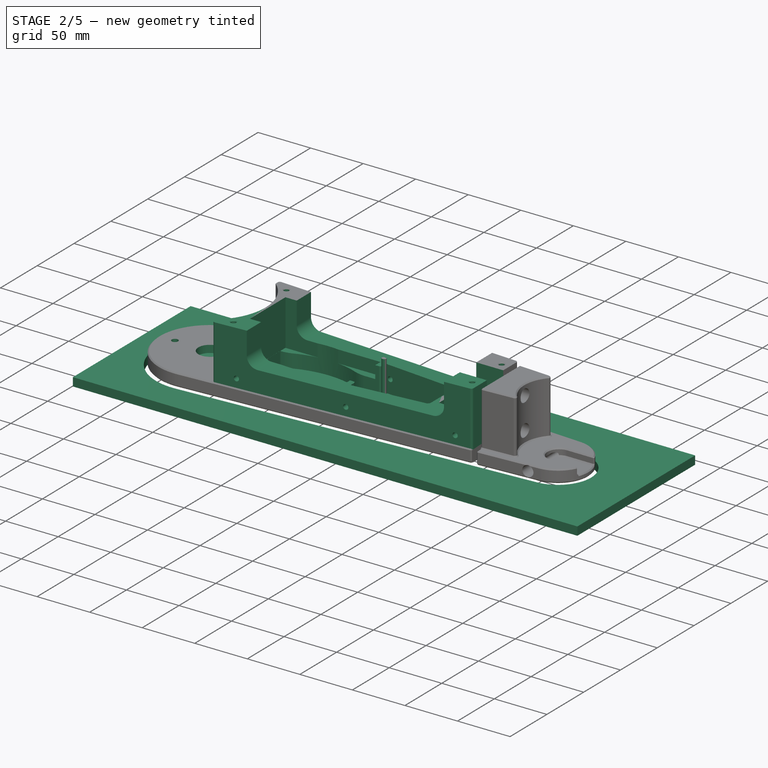
[diagram: stage 2 of 5 — iso view after this stage's code; geometry added in this stage tinted green]
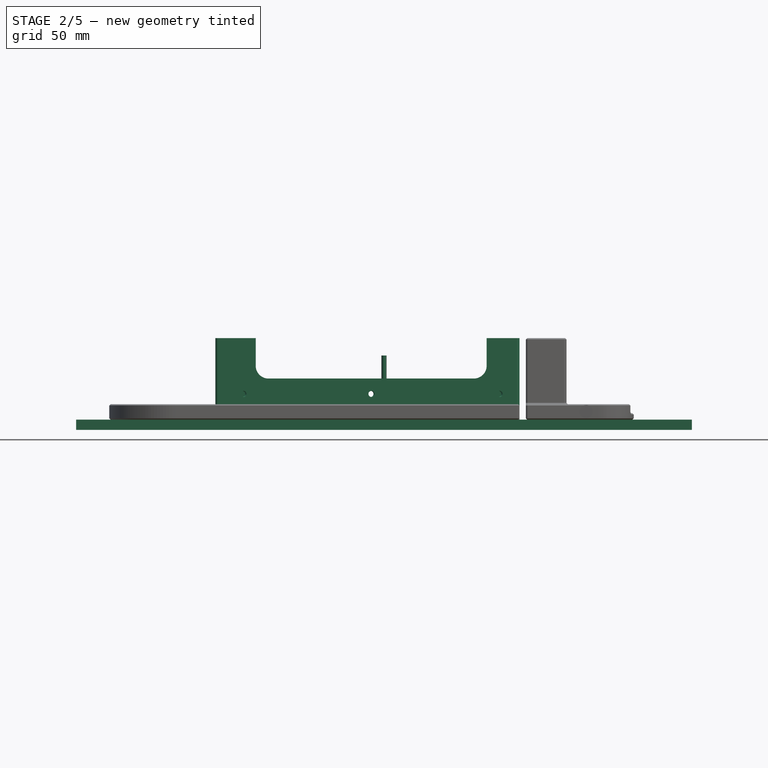
[diagram: stage 2 of 5 — front view after this stage's code; geometry added in this stage tinted green]
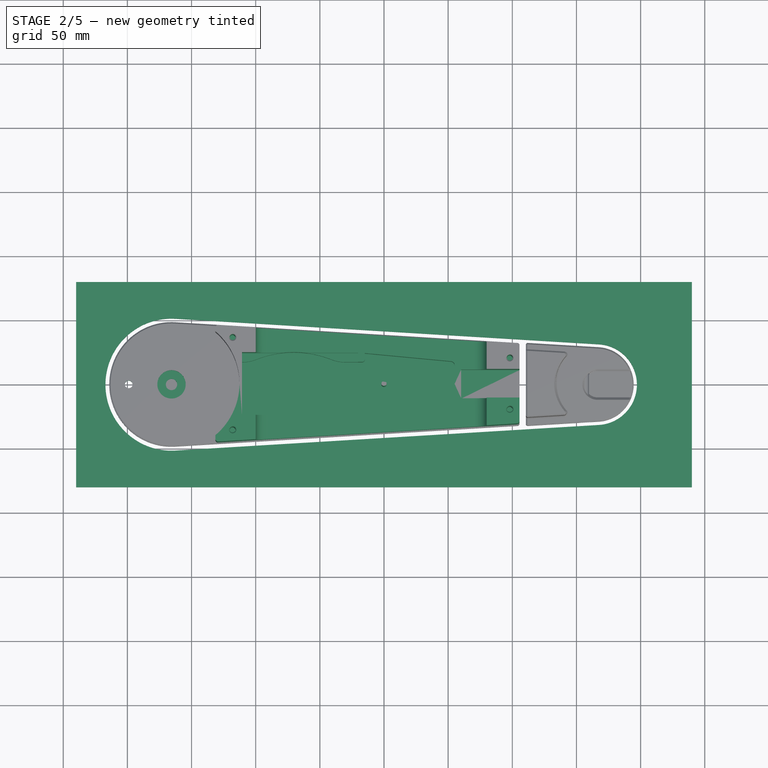
[diagram: stage 2 of 5 — top view after this stage's code; geometry added in this stage tinted green]
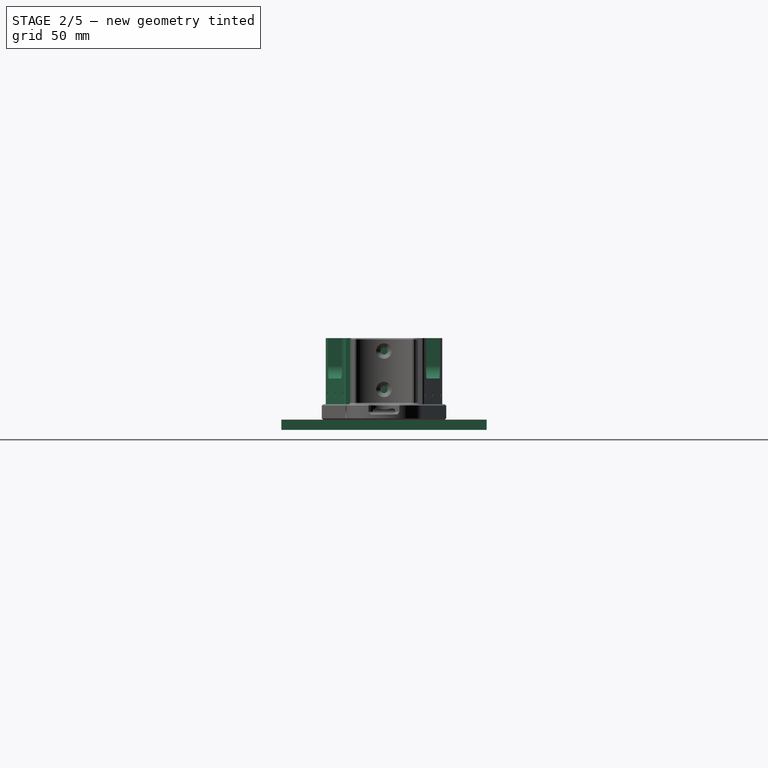
[diagram: stage 2 of 5 — right view after this stage's code; geometry added in this stage tinted green]
FEATURE [PartDesign::Body] Body002  label="Small cylinder"
  AllowCompound = false
  Group = -> [Sketch027,Revolution001]
  Origin = -> Origin002
  Placement = pos=(165.616,0,13.5) rot=(0,0,1;0rad)
  Tip = -> Revolution001
  expr: .Placement.Base.x = <<Belt sketch>>.Constraints.cylinder_distance / 2
  expr: .Placement.Base.z = <<Belt>>.Placement.Base.z
FEATURE [Sketcher::SketchObject] Sketch028  label="Unit mounting hole right sketch"
  ArcFitTolerance = 0
  AttachmentOffset = pos=(0,0,12) rot=(0,0,1;0rad)
  AttachmentSupport = -> [XY_Plane007]
  FullyConstrained = true
  MakeInternals = false
  MapMode = 5
  Placement = pos=(0,0,12) rot=(0,0,1;0rad)
  expr: .AttachmentOffset.Base.z = <<Pad007>>.Length
  sketch-geometry (1):
    g0: Circle CenterX=90 CenterY=0 CenterZ=0 NormalX=0 NormalY=0 NormalZ=1 AngleXU=0 Radius=3
  constraints (3):
    c: PointOnObject(g0,g-1)
    c: Diameter(g0) = 6
    c: DistanceX(g-1,g0) = 90
FEATURE [Sketcher::SketchObject] Sketch031
  ArcFitTolerance = 0
  AttachmentSupport = -> [XY_Plane009]
  FullyConstrained = true
  MakeInternals = false
  MapMode = 5
  expr: Constraints[8] = <<Belt sketch>>.Constraints.left_axle_offset
  sketch-geometry (6):
    g0: LineSegment StartX=-240 StartY=80 StartZ=0 EndX=-240 EndY=-80 EndZ=0
    g1: LineSegment StartX=-240 StartY=-80 StartZ=0 EndX=240 EndY=-80 EndZ=0
    g2: LineSegment StartX=240 StartY=-80 StartZ=0 EndX=240 EndY=80 EndZ=0
    g3: LineSegment StartX=240 StartY=80 StartZ=0 EndX=-240 EndY=80 EndZ=0
    g4: Circle CenterX=-165.616 CenterY=0 CenterZ=0 NormalX=0 NormalY=0 NormalZ=1 AngleXU=0 Radius=27.5
    g5: Circle CenterX=-25 CenterY=0 CenterZ=0 NormalX=0 NormalY=0 NormalZ=1 AngleXU=0 Radius=12.5
  constraints (17):
    c: Coincident(g0,g1)
    c: Coincident(g1,g2)
    c: Coincident(g2,g3)
    c: Coincident(g3,g0)
    c: Vertical(g0)
    c: Horizontal(g3)
    c: DistanceY(g2,g2) = 160
    c: PointOnObject(g4,g-1)
    c: DistanceX(g4,g-1) = 165.616
    c: Diameter(g4) = 55
    c: PointOnObject(g5,g-1)
    c: Diameter(g5) = 25
    c: DistanceX(g5,g-1) = 25
    c: Symmetric(g1,g2,g-1)
    c: DistanceX(g3,g3) = 480
    c: DistanceX(g0,g-1) = 240
    c: Horizontal(g1)
FEATURE [PartDesign::Pad] Pad013
  Direction = (0,0,1)
  Length = 8
  Length2 = 10
  Profile = -> Sketch031
  ReferenceAxis = -> Sketch031 [N_Axis]
  Reversed = true
  Suppressed = false
  Type = 0
FEATURE [Sketcher::SketchObject] Sketch038  label="Connecting hole sketch"
  ArcFitTolerance = 0
  AttachmentOffset = pos=(0,0,63.5) rot=(0,0,1;0rad)
  AttachmentSupport = -> [XY_Plane007]
  FullyConstrained = true
  MakeInternals = false
  MapMode = 5
  Placement = pos=(0,0,63.5) rot=(0,0,1;0rad)
  expr: .AttachmentOffset.Base.z = <<Pad007>>.Length + dd.BeltClearance + 50 mm
  sketch-geometry (4):
    g0: Circle CenterX=-118 CenterY=-36 CenterZ=0 NormalX=0 NormalY=0 NormalZ=1 AngleXU=0 Radius=3.1
    g1: Circle CenterX=-118 CenterY=36 CenterZ=0 NormalX=0 NormalY=0 NormalZ=1 AngleXU=0 Radius=3.1
    g2: Circle CenterX=98 CenterY=20 CenterZ=0 NormalX=0 NormalY=0 NormalZ=1 AngleXU=0 Radius=3.1
    g3: Circle CenterX=98 CenterY=-20 CenterZ=0 NormalX=0 NormalY=0 NormalZ=1 AngleXU=0 Radius=3.1
  constraints (10):
    c: Equal(g1,g0)
    c: Diameter(g1) = 6.2
    c: Symmetric(g1,g0,g-1)
    c: DistanceY(g0,g1) = 72
    c: DistanceX(g0,g-1) = 118
    c: Equal(g0,g3)
    c: Equal(g3,g2)
    c: Symmetric(g3,g2,g-1)
    c: DistanceY(g3,g2) = 40
    c: DistanceX(g-1,g2) = 98
FEATURE [Sketcher::SketchObject] Sketch044
  ArcFitTolerance = 0
  AttachmentOffset = pos=(0,0,12) rot=(0,0,1;0rad)
  AttachmentSupport = -> [XY_Plane007]
  ExternalGeometry = -> [Binder007]
  FullyConstrained = false
  MakeInternals = false
  MapMode = 5
  Placement = pos=(0,0,12) rot=(0,0,1;0rad)
  expr: .AttachmentOffset.Base.z = <<Pad007>>.Length
  expr: Constraints[11] = <<Arm>>.Length + 0.3 mm
  sketch-geometry (6):
    g0: LineSegment StartX=60.1162 StartY=11.15 StartZ=0 EndX=60.1162 EndY=-11.15 EndZ=0
    g1: LineSegment StartX=60.1162 StartY=-11.15 StartZ=0 EndX=109.116 EndY=-11.15 EndZ=0
    g2: LineSegment StartX=110.116 StartY=-10.15 StartZ=0 EndX=110.116 EndY=10.15 EndZ=0
    g3: LineSegment StartX=109.116 StartY=11.15 StartZ=0 EndX=60.1162 EndY=11.15 EndZ=0
    g4: ArcOfCircle CenterX=109.116 CenterY=10.15 CenterZ=0 NormalX=0 NormalY=0 NormalZ=1 AngleXU=0 Radius=1 StartAngle=1e-16 EndAngle=1.5708
    g5: ArcOfCircle CenterX=109.116 CenterY=-10.15 CenterZ=0 NormalX=0 NormalY=0 NormalZ=1 AngleXU=0 Radius=1 StartAngle=4.71239 EndAngle=6.28319
  constraints (13):
    c: Coincident(g0,g1)
    c: Coincident(g3,g0)
    c: Horizontal(g1)
    c: Horizontal(g3)
    c: Tangent(g2,g4) = -1.5708
    c: Tangent(g3,g4) = -1.5708
    c: Tangent(g1,g5) = -1.5708
    c: Tangent(g2,g5) = -1.5708
    c: Equal(g5,g4)
    c: Radius(g4) = 1
    c: Vertical(g0)
    c: DistanceY(g0,g0) = 22.3
    c: Symmetric(g2,g2,g-1)
FEATURE [Sketcher::SketchObject] Sketch045
  ArcFitTolerance = 0
  AttachmentSupport = -> [XZ_Plane014]
  FullyConstrained = false
  MakeInternals = false
  MapMode = 5
  Placement = pos=(0,0,0) rot=(1,0,0;1.5708rad)
  sketch-geometry (3):
    g0: LineSegment StartX=62 StartY=5 StartZ=0 EndX=62 EndY=0 EndZ=0
    g1: LineSegment StartX=62 StartY=0 StartZ=0 EndX=72 EndY=-9e-16 EndZ=0
    g2: ArcOfCircle CenterX=62.7633 CenterY=-5.97349 CenterZ=0 NormalX=0 NormalY=0 NormalZ=1 AngleXU=0 Radius=11 StartAngle=0.574058 EndAngle=1.64024
  constraints (9):
    c: PointOnObject(g1,g-1)
    c: PointOnObject(g0,g-1)
    c: Vertical(g0)
    c: Coincident(g1,g0)
    c: DistanceY(g0,g0) = 5
    c: Coincident(g2,g0)
    c: Coincident(g2,g1)
    c: Radius(g2) = 11
    c: DistanceX(g1,g1) = 10
FEATURE [Sketcher::SketchObject] Sketch046
  ArcFitTolerance = 0
  AttachmentSupport = -> [YZ_Plane014]
  FullyConstrained = true
  MakeInternals = false
  MapMode = 5
  Placement = pos=(0,0,0) rot=(0.57735,0.57735,0.57735;2.0944rad)
  expr: Constraints[2] = .Constraints.diameter / 2 + <<Pad007>>.Length - 2 mm
  sketch-geometry (1):
    g0: Circle CenterX=0 CenterY=-16 CenterZ=0 NormalX=0 NormalY=0 NormalZ=1 AngleXU=0 Radius=6
  constraints (3):
    c: Diameter(g0) = 12  'diameter'
    c: PointOnObject(g0,g-2)
    c: DistanceY(g0,g-1) = 16
FEATURE [Sketcher::SketchObject] Sketch047  label="Tensioner pocket sketch"
  ArcFitTolerance = 0
  AttachmentSupport = -> [XZ_Plane014]
  FullyConstrained = true
  MakeInternals = false
  MapMode = 5
  Placement = pos=(0,0,0) rot=(1,0,0;1.5708rad)
  expr: Constraints[10] = <<Mounting pad>>.Length
  expr: Constraints[12] = <<Pad007>>.Length
  sketch-geometry (9):
    g0: LineSegment StartX=62 StartY=0 StartZ=0 EndX=-16.7509 EndY=0 EndZ=0
    g1: ArcOfCircle CenterX=62 CenterY=0.5 CenterZ=0 NormalX=0 NormalY=0 NormalZ=1 AngleXU=0 Radius=0.5 StartAngle=3.14159 EndAngle=4.71239
    g2: LineSegment StartX=61.5 StartY=0.5 StartZ=0 EndX=61.5 EndY=63.5 EndZ=0
    g3: LineSegment StartX=61.5 StartY=63.5 StartZ=0 EndX=-22.1543 EndY=63.5 EndZ=0
    g4: ArcOfCircle CenterX=-16.7509 CenterY=0.3 CenterZ=0 NormalX=0 NormalY=0 NormalZ=1 AngleXU=0 Radius=0.3 StartAngle=4.71239 EndAngle=6.86325
    g5: Circle [constr] CenterX=-5 CenterY=8 CenterZ=0 NormalX=0 NormalY=0 NormalZ=1 AngleXU=0 Radius=13.749
    g6: ArcOfCircle CenterX=-5 CenterY=8 CenterZ=0 NormalX=0 NormalY=0 NormalZ=1 AngleXU=0 Radius=13.749 StartAngle=2.84639 EndAngle=3.72166
    g7: LineSegment StartX=-18.1543 StartY=12 StartZ=0 EndX=-22.1543 EndY=12 EndZ=0
    g8: LineSegment StartX=-22.1543 StartY=12 StartZ=0 EndX=-22.1543 EndY=63.5 EndZ=0
  constraints (25):
    c: Horizontal(g0)
    c: Tangent(g1,g0) = 1.5708
    c: Radius(g1) = 0.5
    c: Vertical(g2)
    c: Coincident(g3,g2)
    c: Tangent(g4,g0) = 1.5708
    c: Radius(g4) = 0.3
    c: Horizontal(g3)
    c: DistanceX(g-1,g2) = 61.5
    c: PointOnObject(g0,g-1)
    c: DistanceY(g-1,g3) = 63.5
    c: Tangent(g1,g2) = 1.5708
    c: DistanceY(g0,g6) = 12
    c: DistanceX(g4,g1) = 78
    c: DistanceY(g-1,g5) = 8
    c: Coincident(g6,g5)
    c: Tangent(g6,g4) = 1.5708
    c: Equal(g6,g5)
    c: DistanceX(g5,g1) = 66.5
    c: Coincident(g7,g6)
    c: Coincident(g8,g7)
    c: Coincident(g8,g3)
    c: Vertical(g8)
    c: Horizontal(g7)
    c: DistanceX(g7,g7) = 4
FEATURE [Sketcher::SketchObject] Sketch076
  ArcFitTolerance = 0
  AttachmentOffset = pos=(0,0,20) rot=(0,0,1;0rad)
  AttachmentSupport = -> [XY_Plane007]
  FullyConstrained = true
  MakeInternals = false
  MapMode = 5
  Placement = pos=(0,0,20) rot=(0,0,1;0rad)
  sketch-geometry (5):
    g0: LineSegment StartX=-110.7 StartY=-24.2 StartZ=0 EndX=-110.7 EndY=24.2 EndZ=0
    g1: LineSegment StartX=-110.7 StartY=24.2 StartZ=0 EndX=-20.3 EndY=24.2 EndZ=0
    g2: LineSegment StartX=-20.3 StartY=24.2 StartZ=0 EndX=-20.3 EndY=-24.2 EndZ=0
    g3: LineSegment StartX=-20.3 StartY=-24.2 StartZ=0 EndX=-110.7 EndY=-24.2 EndZ=0
    g4: GeomPoint [constr] X=-65.5 Y=24.2 Z=0
  constraints (12):
    c: Horizontal(g1)
    c: Vertical(g2)
    c: Horizontal(g3)
    c: Symmetric(g0,g0,g-1)
    c: Symmetric(g1,g1,g4)
    c: DistanceX(g4,g-1) = 65.5
    c: DistanceX(g0,g2) = 90.4
    c: DistanceY(g3,g1) = 48.4
    c: Coincident(g1,g2)
    c: Coincident(g0,g1)
    c: Coincident(g3,g0)
    c: Coincident(g3,g2)
FEATURE [App::FeaturePython] dd  # WARN: FeaturePython — macro-defined, semantics opaque (R4)
  BeltClearance = 1.5
  DynamicData = Created with DynamicData (v2.62) workbench. | This is a simple container object built | for holding custom properties.
  RollerHeight = 100
FEATURE [Sketcher::SketchObject] Sketch109  label="Cable storage sketch"
  ArcFitTolerance = 0
  AttachmentOffset = pos=(0,0,7) rot=(0,0,1;0rad)
  AttachmentSupport = -> [XY_Plane007]
  FullyConstrained = true
  MakeInternals = false
  MapMode = 5
  Placement = pos=(0,0,7) rot=(0,0,1;0rad)
  expr: Constraints[30] = .Constraints.right + 15 mm
  expr: Constraints[31] = <<Belt sketch>>.Constraints.left_axle_offset - <<Belt sketch>>.Constraints.large_diameter / 2 - 5 mm
  sketch-geometry (13):
    g0: LineSegment StartX=-110.616 StartY=0 StartZ=0 EndX=55 EndY=0 EndZ=0
    g1: LineSegment StartX=55 StartY=0 StartZ=0 EndX=55 EndY=14.68 EndZ=0
    g2: LineSegment StartX=52.2811 StartY=17.6668 StartZ=0 EndX=-15 EndY=24 EndZ=0
    g3: LineSegment StartX=-15 StartY=24 StartZ=0 EndX=-15 EndY=19.14 EndZ=0
    g4: LineSegment StartX=-17 StartY=17.14 StartZ=0 EndX=-30 EndY=17.14 EndZ=0
    g5: ArcOfCircle CenterX=-30 CenterY=47.14 CenterZ=0 NormalX=0 NormalY=0 NormalZ=1 AngleXU=0 Radius=30 StartAngle=4.33721 EndAngle=4.71239
    g6: ArcOfCircle CenterX=-70.3081 CenterY=-55.2087 CenterZ=0 NormalX=0 NormalY=0 NormalZ=1 AngleXU=0 Radius=80 StartAngle=1.19562 EndAngle=1.94597
    g7: ArcOfCircle CenterX=-110.616 CenterY=47.14 CenterZ=0 NormalX=0 NormalY=0 NormalZ=1 AngleXU=0 Radius=30 StartAngle=4.71239 EndAngle=5.08757
    g8: LineSegment StartX=-110.616 StartY=17.14 StartZ=0 EndX=-110.616 EndY=0 EndZ=0
    g9: ArcOfCircle CenterX=-17 CenterY=19.14 CenterZ=0 NormalX=0 NormalY=0 NormalZ=1 AngleXU=0 Radius=2 StartAngle=4.71239 EndAngle=6.28319
    g10: GeomPoint [constr] X=-15 Y=17.14 Z=0
    g11: ArcOfCircle CenterX=52 CenterY=14.68 CenterZ=0 NormalX=0 NormalY=0 NormalZ=1 AngleXU=0 Radius=3 StartAngle=0 EndAngle=1.47694
    g12: GeomPoint [constr] X=55 Y=17.4109 Z=0
  constraints (35):
    c: Coincident(g0,g1)
    c: Coincident(g3,g2)
    c: Horizontal(g4)
    c: PointOnObject(g0,g-1)
    c: Vertical(g1)
    c: PointOnObject(g8,g-1)
    c: Vertical(g8)
    c: Coincident(g8,g0)
    c: DistanceX(g-1,g0) = 55  'right'
    c: Tangent(g5,g4) = 1.5708
    c: Equal(g5,g7)
    c: Radius(g5) = 30
    c: Tangent(g6,g5) = 1.5708
    c: Tangent(g7,g6) = 1.5708
    c: Horizontal(g7,g4)
    c: Horizontal(g6,g5)
    c: Radius(g6) = 80
    c: PointOnObject(g10,g3)
    c: PointOnObject(g10,g4)
    c: Tangent(g3,g9) = 1.5708
    c: Tangent(g4,g9) = 1.5708
    c: Radius(g9) = 2
    c: Coincident(g8,g7)
    c: PointOnObject(g12,g1)
    c: PointOnObject(g12,g2)
    c: Tangent(g1,g11) = -1.5708
    c: Tangent(g2,g11) = -1.5708
    c: Radius(g11) = 3
    c: DistanceY(g8,g8) = 17.14
    c: DistanceY(g1,g1) = 14.68
    c: DistanceX(g3,g0) = 70
    c: DistanceX(g0,g-1) = 110.616
    c: Vertical(g3)
    c: DistanceY(g-1,g2) = 24
    c: DistanceX(g4,g2) = 15
FEATURE [Sketcher::SketchObject] Sketch110  label="Cable path"
  ArcFitTolerance = 0
  AttachmentSupport = -> [XZ_Plane007]
  FullyConstrained = true
  MakeInternals = false
  MapMode = 5
  Placement = pos=(0,0,0) rot=(1,0,0;1.5708rad)
  expr: .Constraints.height_left = <<Pad007>>.Length + 2 mm
  expr: Constraints[3] = <<Pad007>>.Length / 2
  expr: Constraints[8] = <<Belt sketch>>.Constraints.left_axle_offset - 10 mm
  sketch-geometry (5):
    g0: ArcOfCircle CenterX=-147.616 CenterY=14 CenterZ=0 NormalX=0 NormalY=0 NormalZ=1 AngleXU=0 Radius=8 StartAngle=3.14159 EndAngle=4.71239
    g1: ArcOfCircle CenterX=-97.6162 CenterY=10 CenterZ=0 NormalX=0 NormalY=0 NormalZ=1 AngleXU=0 Radius=4 StartAngle=4.71239 EndAngle=6.28319
    g2: LineSegment StartX=-97.6162 StartY=6 StartZ=0 EndX=-147.616 EndY=6 EndZ=0
    g3: LineSegment [constr] StartX=-155.616 StartY=14 StartZ=0 EndX=-155.616 EndY=0 EndZ=0
    g4: LineSegment [constr] StartX=-93.6162 StartY=10 StartZ=0 EndX=-93.6162 EndY=0 EndZ=0
  constraints (14):
    c: Horizontal(g2)
    c: Tangent(g2,g1) = 1.5708
    c: Tangent(g2,g0) = 1.5708
    c: DistanceY(g-1,g1) = 6
    c: DistanceY(g-1,g0) = 14  'height_left'
    c: DistanceY(g-1,g1) = 10  'height_right'
    c: Vertical(g3)
    c: Tangent(g3,g0) = -1.5708
    c: DistanceX(g3,g-1) = 155.616
    c: DistanceX(g0,g1) = 62
    c: PointOnObject(g4,g-1)
    c: Vertical(g4)
    c: Tangent(g4,g1) = 1.5708
    c: PointOnObject(g3,g-1)
FEATURE [Sketcher::SketchObject] Sketch111  label="Cable profile"
  ArcFitTolerance = 0
  AttachmentOffset = pos=(0,0,14) rot=(0,1,0;0rad)
  AttachmentSupport = -> [XY_Plane007]
  FullyConstrained = false
  MakeInternals = false
  MapMode = 5
  Placement = pos=(0,0,14) rot=(0,0,1;0rad)
  expr: .AttachmentOffset.Base.z = <<Cable path>>.Constraints.height_left
  sketch-geometry (5):
    g0: Ellipse CenterX=-155.616 CenterY=0 CenterZ=0 NormalX=0 NormalY=0 NormalZ=1 MajorRadius=10 MinorRadius=5.25 AngleXU=1.5708
    g1: LineSegment [constr] StartX=-155.616 StartY=10 StartZ=0 EndX=-155.616 EndY=-10 EndZ=0
    g2: LineSegment [constr] StartX=-160.866 StartY=2.7e-15 StartZ=0 EndX=-150.366 EndY=2.7e-15 EndZ=0
    g3: GeomPoint [constr] X=-155.616 Y=8.51102 Z=0
    g4: GeomPoint [constr] X=-155.616 Y=-8.51102 Z=0
  constraints (4):
    c: InternalAlignment(g1-g4 -> g0) x4
    c: DistanceY(g1,g1) = 20
    c: DistanceX(g2,g2) = 10.5
    c: Horizontal(g2)
FEATURE [PartDesign::SubShapeBinder] Binder018  label="Panel top binder"
  BindCopyOnChange = 0
  BindMode = 0
  ClaimChildren = false
  Context = -> Body013 [Binder018.]
  Fuse = false
  MakeFace = true
  Offset = 0.15
  OffsetFill = false
  OffsetIntersection = false
  OffsetJoinType = 0
  OffsetOpenResult = false
  PartialLoad = false
  Relative = true
  _Version = 2
FEATURE [PartDesign::Hole] Hole
  BaseFeature = -> Pad005
  CustomThreadClearance = 0
  Depth = 25
  DepthType = 0
  Diameter = 4.5
  DrillForDepth = false
  DrillPoint = 1
  DrillPointAngle = 118
  HoleCutCountersinkAngle = 90
  HoleCutCustomValues = false
  HoleCutDepth = 0
  HoleCutDiameter = 13
  HoleCutType = 2
  ModelThread = false
  Placement = pos=(2.41522,-39.927,0) rot=(0.999088,0.03019,0.03019;1.57171rad)
  Profile = -> Sketch005
  Suppressed = false
  Tapered = false
  TaperedAngle = 90
  ThreadClass = 0
  ThreadDepth = 25
  ThreadDepthType = 0
  ThreadDirection = 0
  ThreadFit = 0
  ThreadSize = 0
  ThreadType = 0
  Threaded = false
  UseCustomThreadClearance = false
FEATURE [Path::FeaturePython] Profile  # Path/CAM operation (typed FeaturePython)
  Active = true
  AreaParams:
    Tolerance = 1e-07
    FitArcs = True
    Simplify = False
    CleanDistance = 0.0
    Accuracy = 0.01
    Unit = 1.0
    MinArcPoints = 4
    MaxArcPoints = 100
    ClipperScale = 10000000.0
    Fill = 0
    Coplanar = 0
    Reorient = True
    Outline = False
    Explode = False
    OpenMode = 0
    Deflection = 0.01
    SubjectFill = 0
    ClipFill = 0
    Offset = 2.0
    ExtraPass = 0
    Stepover = 0.0
    LastStepover = 0.0
    JoinType = 0
    EndType = 0
    MiterLimit = 2.0
    RoundPrecision = 0.0
    PocketMode = 0
    ToolRadius = 1.0
    PocketExtraOffset = 0.0
    PocketStepover = 0.0
    PocketLastStepover = 0.0
    FromCenter = False
    Angle = 45.0
    AngleShift = 0.0
    Shift = 0.0
    Thicken = False
    SectionCount = -1
    Stepdown = 1.0
    SectionOffset = 0.0
    SectionTolerance = 1e-06
    SectionMode = 2
    Project = False
  Base = -> [Clone002]
  ClearanceHeight = 10
  CoolantMode = 2
  CycleTime = 00:00:39
  Direction = 0
  FinalDepth = -2.5
  HandleMultipleFeatures = 0
  JoinType = 0
  MiterLimit = 0.1
  OffsetExtra = 0
  OpFinalDepth = -2.5
  OpStartDepth = 8.53e-14
  OpStockZMax = 8.48e-14
  OpStockZMin = -2.5
  OpToolDiameter = 4
  PathParams = {'orientation': 1, 'feedrate': 33.33333333333334, 'feedrate_v': 13.33333333333333, 'verbose': True, 'resume_height': 5.000000000000085, 'retraction': 10.000000000000085, 'return_end': True, 'preamble': False, 'start': Vector (233.13188721031148, 92.8051982977242, 10.000000000000085)}
  SafeHeight = 5
  Side = 0
  SplitArcs = false
  StartDepth = 8.53e-14
  StartPoint = (0,0,0)
  StepDown = 4
  ToolController = -> TC__4mm_single_flute_DLC_coated_Hozly
  UseComp = true
  UseStartPoint = false
  processCircles = true
  processHoles = true
  processPerimeter = true
  expr: ClearanceHeight = OpStockZMax + SetupSheet.ClearanceHeightOffset
  expr: FinalDepth = OpFinalDepth
  expr: SafeHeight = OpStockZMax + SetupSheet.SafeHeightOffset
  expr: StartDepth = OpStartDepth
  expr: StepDown = OpToolDiameter
FEATURE [Part::FeaturePython] V_Bit_D4_2_flute_DLC_coated  label="V-Bit D4 2-flute DLC-coated001"  # Path/CAM toolbit (typed FeaturePython)
  BitPropertyNames = Chipload | CuttingEdgeAngle | CuttingEdgeHeight | Diameter | Flutes | Length | Material | ShankDiameter | TipDiameter
  BitShape = <userpath>/Documents/projects/hardware/CNC/tools/Shape/vbit.fcstd
  Chipload = 0
  CuttingEdgeAngle = 90
  CuttingEdgeHeight = 10
  Diameter = 4
  File = <userpath>/Documents/projects/hardware/CNC/tools/Bit/996e6746-427c-11ee-9624-70cf49ba8597.fctb
  Flutes = 2
  Length = 50
  Material = 1
  ShankDiameter = 4
  ShapeName = vbit
  TipDiameter = 0.1
FEATURE [Path::FeaturePython] TC__V_Bit_D4_2_flute_DLC_coated001  label="TC: V-Bit D4 2-flute DLC-coated001"  # Path/CAM operation (typed FeaturePython)
  HorizFeed = 25
  HorizRapid = 100
  SpindleDir = 0
  SpindleSpeed = 13000
  Tool = -> V_Bit_D4_2_flute_DLC_coated
  ToolNumber = 51
  VertFeed = 25
  VertRapid = 25
  expr: HorizRapid = SetupSheet.HorizRapid
  expr: VertRapid = SetupSheet.VertRapid
FEATURE [App::DocumentObjectGroup] Tools
  Group = -> [TC__4mm_single_flute_DLC_coated_Hozly,TC__V_Bit_D4_2_flute_DLC_coated001]
FEATURE [Path::FeaturePython] Deburr  # Path/CAM operation (typed FeaturePython)
  Active = true
  Base = -> [Clone002]
  ClearanceHeight = 10
  CoolantMode = 2
  CycleTime = 00:00:12
  Direction = 0
  EntryPoint = 0
  ExtraDepth = 2.7
  Join = 0
  OpStockZMax = 8.48e-14
  OpStockZMin = -2.5
  OpToolDiameter = 4
  SafeHeight = 5
  Side = 1
  StartDepth = 9.95e-14
  StepDown = 0.3
  ToolController = -> TC__V_Bit_D4_2_flute_DLC_coated001
  Width = 0
  expr: ClearanceHeight = OpStockZMax + SetupSheet.ClearanceHeightOffset
  expr: ExtraDepth = <<Backing plate>>.Length + 0.2 mm
  expr: SafeHeight = OpStockZMax + SetupSheet.SafeHeightOffset
FEATURE [App::DocumentObjectGroup] Operations
  Group = -> [Profile,Deburr]
FEATURE [Path::FeaturePython] Job  # Path/CAM operation (typed FeaturePython)
  CycleTime = 00:00:51
  Fixtures = G54
  GeometryTolerance = 0.01
  JobType = 0
  Model = -> Model
  Operations = -> Operations
  OrderOutputBy = 0
  PostProcessor = 14
  PostProcessorArgs = --preamble="G17 G90 G64 P0.001"
  SetupSheet = -> SetupSheet
  SplitOutput = false
  Stock = -> Stock001
  Tools = -> Tools
FEATURE [PartDesign::SubShapeBinder] Binder031
  BindCopyOnChange = 0
  BindMode = 0
  ClaimChildren = false
  Context = -> Body009 [Binder031.]
  Fuse = false
  MakeFace = true
  Offset = 1.5
  OffsetFill = false
  OffsetIntersection = false
  OffsetJoinType = 0
  OffsetOpenResult = false
  PartialLoad = false
  Relative = false
  Support = -> [Body[Sketch.]]
  _Version = 2
FEATURE [PartDesign::Pocket] Pocket057
  BaseFeature = -> Pad013
  Direction = (0,0,-1)
  Length = 12
  Length2 = 5
  Midplane = true
  Profile = -> Binder031
  Reversed = true
  Suppressed = false
  Type = 1
FEATURE [PartDesign::Hole] Hole036  label="Bearing hole"
  BaseFeature = -> Pad009
  CustomThreadClearance = 0
  Depth = 11.7
  DepthType = 0
  Diameter = 8.8
  DrillForDepth = false
  DrillPoint = 0
  DrillPointAngle = 118
  HoleCutCountersinkAngle = 90
  HoleCutCustomValues = false
  HoleCutDepth = 7
  HoleCutDiameter = 22.1
  HoleCutType = 1
  ModelThread = false
  Profile = -> Sketch158
  Suppressed = false
  Tapered = false
  TaperedAngle = 90
  ThreadClass = 0
  ThreadDepth = 11.7
  ThreadDepthType = 0
  ThreadDirection = 0
  ThreadFit = 0
  ThreadSize = 0
  ThreadType = 0
  Threaded = false
  UseCustomThreadClearance = false
  expr: Depth = <<Pad007>>.Length - 0.3 mm
FEATURE [PartDesign::Mirrored] Mirrored001  label="Mirror mounting pad"
  BaseFeature = -> Hole036
  MirrorPlane = -> XZ_Plane007
  Originals = -> [Pad009,Hole036]
  Refine = true
  Suppressed = false
  TransformMode = 0
FEATURE [PartDesign::Hole] Hole024  label="Backing plate mounting holes"
  BaseFeature = -> Mirrored001
  CustomThreadClearance = 0
  Depth = 20
  DepthType = 0
  Diameter = 4.8
  DrillForDepth = false
  DrillPoint = 0
  DrillPointAngle = 118
  HoleCutCountersinkAngle = 90
  HoleCutCustomValues = false
  HoleCutDepth = 0
  HoleCutDiameter = 6.1
  HoleCutType = 0
  ModelThread = false
  Profile = -> Binder019
  Reversed = true
  Suppressed = false
  Tapered = false
  TaperedAngle = 90
  ThreadClass = 0
  ThreadDepth = 20
  ThreadDepthType = 0
  ThreadDirection = 0
  ThreadFit = 0
  ThreadSize = 0
  ThreadType = 0
  Threaded = false
  UseCustomThreadClearance = false
FEATURE [PartDesign::Mirrored] Mirrored005  label="Mirrored mounting holes"
  BaseFeature = -> Hole024
  MirrorPlane = -> XZ_Plane007
  Originals = -> [Hole024]
  Suppressed = false
  TransformMode = 0
FEATURE [PartDesign::Pocket] Pocket041  label="Mid section pocket"
  BaseFeature = -> Mirrored005
  Direction = (0,1,-2e-16)
  Length = 5
  Length2 = 5
  Midplane = true
  Profile = -> Sketch113
  ReferenceAxis = -> Sketch113 [N_Axis]
  Suppressed = false
  Type = 1
FEATURE [PartDesign::Pocket] Pocket026  label="Belt adjustment arm pocket"
  BaseFeature = -> Pocket041
  Direction = (0,0,-1)
  Length = 5
  Length2 = 5
  Profile = -> Sketch044
  ReferenceAxis = -> Sketch044 [N_Axis]
  Reversed = true
  Suppressed = false
  Type = 1
FEATURE [PartDesign::Hole] Hole006  label="Connecting holes"
  BaseFeature = -> Pocket026
  CustomThreadClearance = 0
  Depth = 50
  DepthType = 0
  Diameter = 4.7
  DrillForDepth = false
  DrillPoint = 0
  DrillPointAngle = 118
  HoleCutCountersinkAngle = 90
  HoleCutCustomValues = false
  HoleCutDepth = 0
  HoleCutDiameter = 6
  HoleCutType = 2
  ModelThread = false
  Profile = -> Sketch038
  Refine = true
  Suppressed = false
  Tapered = false
  TaperedAngle = 90
  ThreadClass = 0
  ThreadDepth = 50
  ThreadDepthType = 0
  ThreadDirection = 0
  ThreadFit = 0
  ThreadSize = 0
  ThreadType = 0
  Threaded = false
  UseCustomThreadClearance = false
FEATURE [PartDesign::Pocket] Pocket038  label="Cable storage pocket"
  BaseFeature = -> Hole006
  Direction = (0,0,-1)
  Length = 5
  Length2 = 5
  Profile = -> Sketch109
  ReferenceAxis = -> Sketch109 [N_Axis]
  Reversed = true
  Suppressed = false
  Type = 1
FEATURE [PartDesign::Mirrored] Mirrored006  label="Mirror cable storage pocket"
  BaseFeature = -> Pocket038
  MirrorPlane = -> Sketch109 [H_Axis]
  Originals = -> [Pocket038]
  Suppressed = false
  TransformMode = 0
FEATURE [PartDesign::Pocket] Pocket025  label="Electronics enclosure pocket"
  BaseFeature = -> Mirrored006
  Direction = (0,0,-1)
  Length = 5
  Length2 = 5
  Profile = -> Sketch076
  ReferenceAxis = -> Sketch076 [N_Axis]
  Reversed = true
  Suppressed = false
  Type = 1
FEATURE [PartDesign::Body] Body013  label="Belt unit top"
  AllowCompound = false
  Group = -> [Clone,Pocket012,Sketch045,Sketch046,SubtractivePipe,Sketch047,Binder018,Pocket039,Binder024,Pocket046,Sketch112,Pocket040,Binder020,Hole025,Binder027,Hole032,Mirrored010]
  Origin = -> Origin014
  Placement = pos=(0,0,127) rot=(1,0,0;3.14159rad)
  Tip = -> Mirrored010
  expr: .Placement.Base.z = <<Mounting pad>>.Length * 2
FEATURE [PartDesign::Hole] Hole042  label="Unit mounting hole left"
  BaseFeature = -> Pocket025
  CustomThreadClearance = 0
  Depth = 686.71
  DepthType = 1
  Diameter = 6
  DrillForDepth = false
  DrillPoint = 1
  DrillPointAngle = 118
  HoleCutCountersinkAngle = 90
  HoleCutCustomValues = false
  HoleCutDepth = 0
  HoleCutDiameter = 13
  HoleCutType = 0
  ModelThread = false
  Profile = -> Sketch181
  Suppressed = false
  Tapered = false
  TaperedAngle = 90
  ThreadClass = 0
  ThreadDepth = 686.71
  ThreadDepthType = 0
  ThreadDirection = 0
  ThreadFit = 0
  ThreadSize = 0
  ThreadType = 0
  Threaded = false
  UseCustomThreadClearance = false
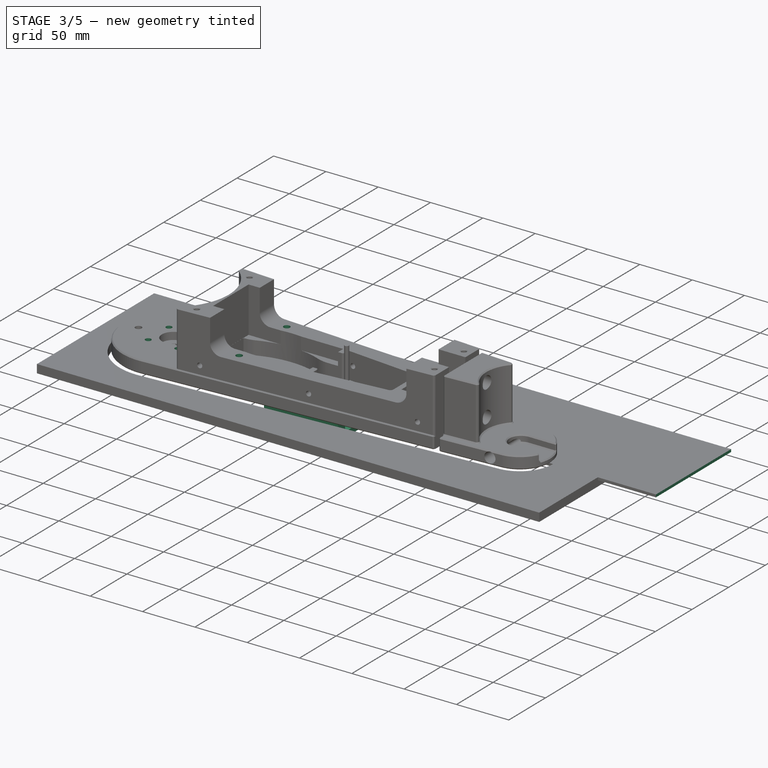
[diagram: stage 3 of 5 — iso view after this stage's code; geometry added in this stage tinted green]
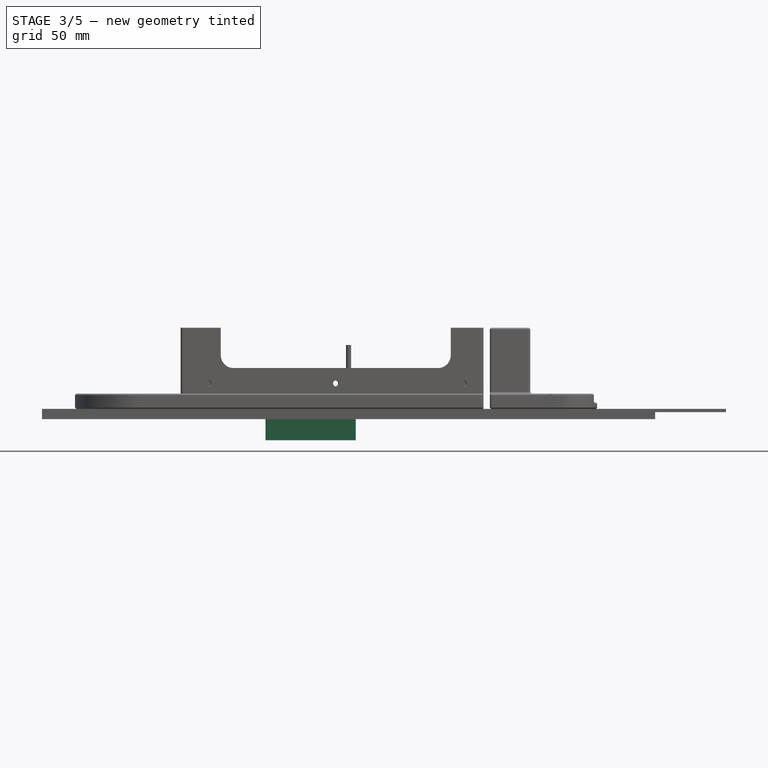
[diagram: stage 3 of 5 — front view after this stage's code; geometry added in this stage tinted green]
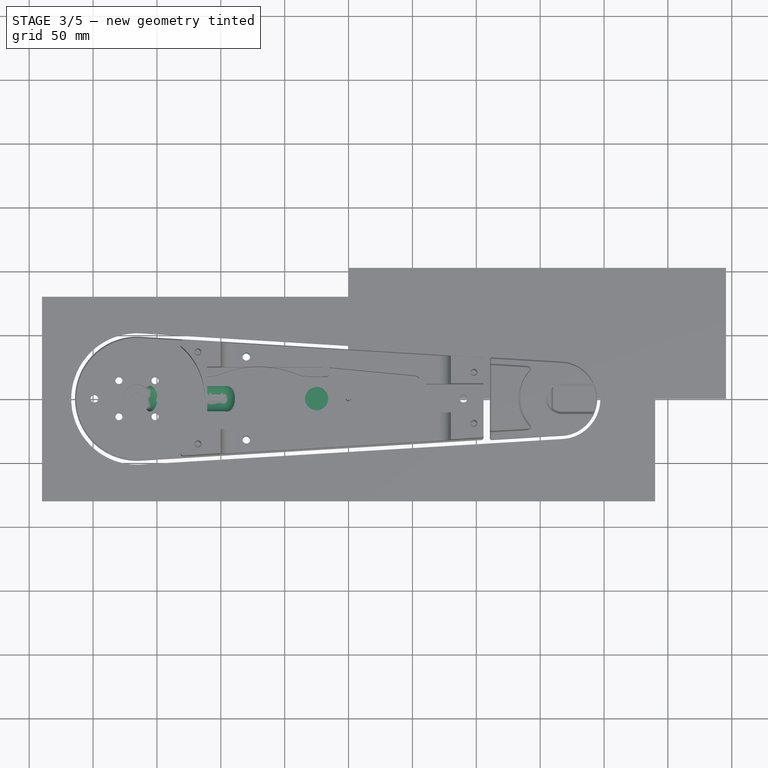
[diagram: stage 3 of 5 — top view after this stage's code; geometry added in this stage tinted green]
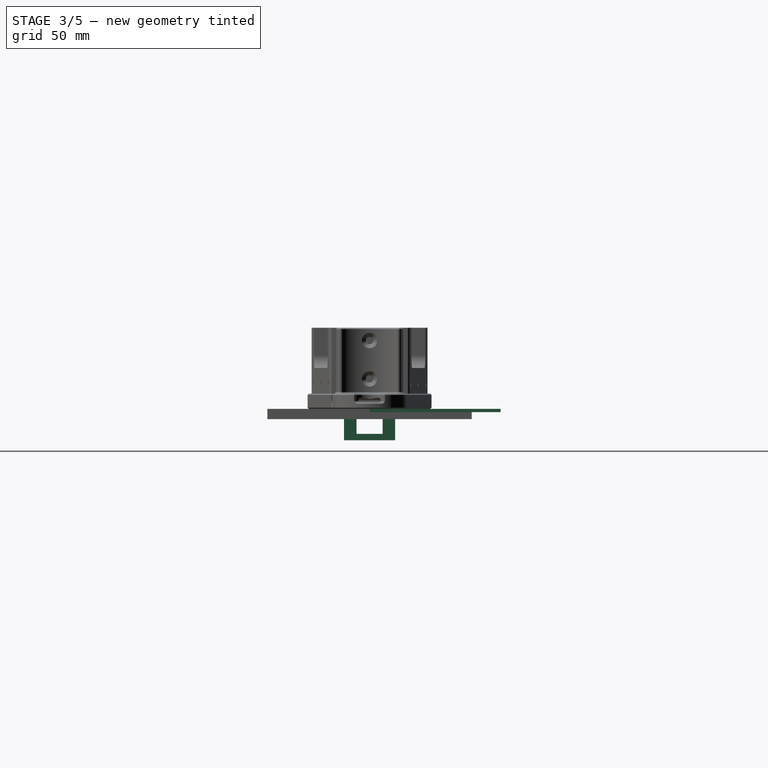
[diagram: stage 3 of 5 — right view after this stage's code; geometry added in this stage tinted green]
FEATURE [PartDesign::Body] Body032  label="Bearing"
  AllowCompound = false
  Group = -> [Sketch003,Pad038]
  Origin = -> Origin051
  Placement = pos=(0,-8.5,0) rot=(0,0,1;0rad)
  Tip = -> Pad038
FEATURE [PartDesign::Pad] Pad039  label="Pad"
  Direction = (0,-1,2e-16)
  Length = 40
  Length2 = 10
  Midplane = true
  Placement = pos=(0,0,0) rot=(1,0,0;1.5708rad)
  Profile = -> Sketch130
  ReferenceAxis = -> Sketch130 [N_Axis]
  Suppressed = false
  Type = 0
FEATURE [Sketcher::SketchObject] Sketch133
  ArcFitTolerance = 0
  AttachmentOffset = pos=(0,0,20) rot=(0,0,1;0rad)
  AttachmentSupport = -> [XZ_Plane050]
  FullyConstrained = false
  MakeInternals = false
  MapMode = 5
  Placement = pos=(0,-20,4.4e-15) rot=(1,0,0;1.5708rad)
  expr: .AttachmentOffset.Base.z = Pad039.Length / 2
  sketch-geometry (5):
    g0: LineSegment StartX=12 StartY=6 StartZ=0 EndX=12 EndY=-34 EndZ=0
    g1: LineSegment StartX=12 StartY=-34 StartZ=0 EndX=-17.9286 EndY=-34 EndZ=0
    g2: LineSegment StartX=-17.9286 StartY=2 StartZ=0 EndX=-17.9286 EndY=-34 EndZ=0
    g3: ArcOfCircle CenterX=2.04122 CenterY=-39.5974 CenterZ=0 NormalX=0 NormalY=0 NormalZ=1 AngleXU=0 Radius=46.1426 StartAngle=1.61505 EndAngle=2.01838
    g4: ArcOfCircle CenterX=3.09661 CenterY=-63.4315 CenterZ=0 NormalX=0 NormalY=0 NormalZ=1 AngleXU=0 Radius=70 StartAngle=1.44326 EndAngle=1.61505
  constraints (11):
    c: Coincident(g1,g0)
    c: Coincident(g1,g2)
    c: Perpendicular(g1,g0)
    c: Perpendicular(g2,g1)
    c: Distance(g0) = 40
    c: Coincident(g3,g2)
    c: PointOnObject(g3,g-2)
    c: Coincident(g4,g0)
    c: Tangent(g4,g3) = -1.5708
    c: Distance(g-1,g3) = 6.5
    c: Radius(g4) = 70
FEATURE [PartDesign::Pocket] Pocket048
  BaseFeature = -> Pad039
  Direction = (0,1,-2e-16)
  Length = 10
  Length2 = 5
  Placement = pos=(0,0,0) rot=(1,0,0;1.5708rad)
  Profile = -> Sketch133
  ReferenceAxis = -> Sketch133 [N_Axis]
  Suppressed = false
  Type = 0
FEATURE [Sketcher::SketchObject] Sketch134
  ArcFitTolerance = 0
  AttachmentSupport = -> [XZ_Plane052]
  FullyConstrained = true
  MakeInternals = false
  MapMode = 5
  Placement = pos=(0,0,0) rot=(1,0,0;1.5708rad)
  sketch-geometry (7):
    g0: LineSegment StartX=-18 StartY=1 StartZ=0 EndX=-65 EndY=3.5 EndZ=0
    g1: LineSegment StartX=-65 StartY=3.5 StartZ=0 EndX=-65 EndY=-24.5 EndZ=0
    g2: LineSegment StartX=-65 StartY=-24.5 StartZ=0 EndX=5.65 EndY=-24.5 EndZ=0
    g3: LineSegment StartX=5.65 StartY=-24.5 StartZ=0 EndX=5.65 EndY=0 EndZ=0
    g4: ArcOfCircle CenterX=22.8133 CenterY=-117.149 CenterZ=0 NormalX=0 NormalY=0 NormalZ=1 AngleXU=0 Radius=125 StartAngle=1.76313 EndAngle=1.9034
    g5: Circle [constr] CenterX=0 CenterY=0 CenterZ=0 NormalX=0 NormalY=0 NormalZ=1 AngleXU=0 Radius=5.65
    g6: ArcOfCircle CenterX=0 CenterY=0 CenterZ=0 NormalX=0 NormalY=0 NormalZ=1 AngleXU=0 Radius=5.65 StartAngle=0 EndAngle=1.76313
  constraints (19):
    c: Coincident(g0,g1)
    c: Vertical(g1)
    c: Coincident(g1,g2)
    c: Horizontal(g2)
    c: Coincident(g2,g3)
    c: Coincident(g4,g0)
    c: Radius(g4) = 125
    c: DistanceY(g1,g1) = 28  'height'
    c: DistanceX(g0,g0) = 47
    c: DistanceY(g2,g-1) = 24.5  'bottom'
    c: DistanceY(g-1,g0) = 1
    c: Coincident(g5,g-1)
    c: Coincident(g6,g5)
    c: PointOnObject(g6,g5)
    c: Tangent(g6,g4) = -1.5708
    c: Diameter(g5) = 11.3
    c: Tangent(g3,g6) = -1.5708
    c: DistanceX(g1,g5) = 65  'x1'
    c: Perpendicular(g2,g3)
FEATURE [PartDesign::Pad] Pad040
  Direction = (0,-1,2e-16)
  Length = 40
  Length2 = 10
  Midplane = true
  Placement = pos=(0,0,0) rot=(1,0,0;1.5708rad)
  Profile = -> Sketch134
  ReferenceAxis = -> Sketch134 [N_Axis]
  Suppressed = false
  Type = 0
  expr: Length = Pad039.Length
FEATURE [Sketcher::SketchObject] Sketch135  label="Lever axis hole sketch"
  ArcFitTolerance = 0
  AttachmentOffset = pos=(0,0,20) rot=(0,0,1;0rad)
  AttachmentSupport = -> [XZ_Plane052]
  FullyConstrained = true
  MakeInternals = false
  MapMode = 5
  Placement = pos=(0,-20,4.4e-15) rot=(1,0,0;1.5708rad)
  expr: .AttachmentOffset.Base.z = <<Pad040>>.Length / 2
  sketch-geometry (1):
    g0: Circle CenterX=0 CenterY=0 CenterZ=0 NormalX=0 NormalY=0 NormalZ=1 AngleXU=0 Radius=2.5
  constraints (2):
    c: Coincident(g0,g-1)
    c: Diameter(g0) = 5
FEATURE [Sketcher::SketchObject] Sketch137  label="Guide rail sketch"
  ArcFitTolerance = 0
  AttachmentOffset = pos=(0,0,-61) rot=(0,0,1;0rad)
  AttachmentSupport = -> [YZ_Plane052]
  FullyConstrained = false
  MakeInternals = false
  MapMode = 5
  Placement = pos=(-61,0,0) rot=(0.57735,0.57735,0.57735;2.0944rad)
  expr: .AttachmentOffset.Base.z = -<<Sketch134>>.Constraints.x1 + 4 mm
  sketch-geometry (4):
    g0: ArcOfCircle CenterX=12.8021 CenterY=-9.25 CenterZ=0 NormalX=0 NormalY=0 NormalZ=1 AngleXU=0 Radius=25 StartAngle=2.71914 EndAngle=3.56405
    g1: ArcOfCircle CenterX=-12.8021 CenterY=-9.25 CenterZ=0 NormalX=0 NormalY=0 NormalZ=1 AngleXU=0 Radius=25 StartAngle=5.86073 EndAngle=6.70564
    g2: LineSegment StartX=10 StartY=-19.5 StartZ=0 EndX=-10 EndY=-19.5 EndZ=0
    g3: LineSegment StartX=-10 StartY=1 StartZ=0 EndX=10 EndY=1 EndZ=0
  constraints (10):
    c: Coincident(g0,g2)
    c: Coincident(g1,g2)
    c: Symmetric(g1,g0,g-2)
    c: Radius(g1) = 25
    c: Equal(g0,g1)
    c: DistanceX(g2,g2) = 20
    c: Horizontal(g1,g0)
    c: Vertical(g0,g0)
    c: Coincident(g3,g0)
    c: Coincident(g3,g1)
FEATURE [Sketcher::SketchObject] Sketch138
  ArcFitTolerance = 0
  AttachmentSupport = -> [YZ_Plane052]
  FullyConstrained = false
  MakeInternals = false
  MapMode = 5
  Placement = pos=(0,0,0) rot=(0.57735,0.57735,0.57735;2.0944rad)
  expr: .Constraints.width = Pad039.Length - 2 * <<Pocket048>>.Length + 0.4 mm
  sketch-geometry (4):
    g0: LineSegment StartX=-10.2 StartY=50.5 StartZ=0 EndX=-10.2 EndY=-19.5 EndZ=0
    g1: LineSegment StartX=-10.2 StartY=-19.5 StartZ=0 EndX=10.2 EndY=-19.5 EndZ=0
    g2: LineSegment StartX=10.2 StartY=-19.5 StartZ=0 EndX=10.2 EndY=50.5 EndZ=0
    g3: LineSegment StartX=10.2 StartY=50.5 StartZ=0 EndX=-10.2 EndY=50.5 EndZ=0
  constraints (10):
    c: Coincident(g0,g1)
    c: Coincident(g1,g2)
    c: Coincident(g2,g3)
    c: Coincident(g3,g0)
    c: Vertical(g0)
    c: Vertical(g2)
    c: Horizontal(g1)
    c: Symmetric(g2,g0,g-2)
    c: DistanceY(g2,g2) = 70
    c: DistanceX(g1,g1) = 20.4  'width'
FEATURE [PartDesign::Pocket] Pocket051
  BaseFeature = -> Pad040
  Direction = (-1,0,0)
  Length = 5
  Length2 = 5
  Midplane = true
  Placement = pos=(0,0,0) rot=(1,0,0;1.5708rad)
  Profile = -> Sketch138
  ReferenceAxis = -> Sketch138 [N_Axis]
  Suppressed = false
  Type = 1
FEATURE [PartDesign::Pocket] Pocket049  label="Lever axis hole"
  BaseFeature = -> Pocket051
  Direction = (0,1,-2e-16)
  Length = 5
  Length2 = 5
  Placement = pos=(0,0,0) rot=(1,0,0;1.5708rad)
  Profile = -> Sketch135
  ReferenceAxis = -> Sketch135 [N_Axis]
  Suppressed = false
  Type = 1
FEATURE [App::FeaturePython] SetupSheet  # Path/CAM operation (typed FeaturePython)
  ClearanceHeightExpression = OpStockZMax+SetupSheet.ClearanceHeightOffset
  ClearanceHeightOffset = 10
  CoolantMode = 2
  CoolantModes = None | Flood | Mist
  FinalDepthExpression = OpFinalDepth
  HorizRapid = 100
  SafeHeightExpression = OpStockZMax+SetupSheet.SafeHeightOffset
  SafeHeightOffset = 5
  StartDepthExpression = OpStartDepth
  StepDownExpression = OpToolDiameter
  VertRapid = 25
FEATURE [Part::FeaturePython] Clone002  label="Model-Belt backing plate"  # Draft clone (typed FeaturePython)
  AttacherType = Attacher::AttachEngine3D
  Fuse = false
  Objects = -> [Body005]
  PathResource = Model
  Placement = pos=(145.178,-12.2,-40) rot=(-0.999088,-0.03019,-0.03019;1.57171rad)
  Scale = (1,1,1)
  expr: .Placement.Base.x = <<Backing plate sketch>>.Constraints.x
  expr: .Placement.Base.y = -<<Backing plate sketch>>.Constraints.y
  expr: .Placement.Base.z = -40
  expr: .Placement.Rotation.Angle = <<Belt face plane>>.Placement.Rotation.Angle
  expr: .Placement.Rotation.Axis.x = -<<Belt face plane>>.Placement.Rotation.Axis.x
  expr: .Placement.Rotation.Axis.y = -<<Belt face plane>>.Placement.Rotation.Axis.y
  expr: .Placement.Rotation.Axis.z = -<<Belt face plane>>.Placement.Rotation.Axis.z
FEATURE [App::DocumentObjectGroup] Model
  Group = -> [Clone002]
FEATURE [Part::FeaturePython] ToolBit  label="4mm single flute DLC coated Hozly"  # Path/CAM toolbit (typed FeaturePython)
  BitPropertyNames = Chipload | CuttingEdgeHeight | Diameter | Flutes | Length | Material | ShankDiameter | SpindleDirection
  BitShape = <path>
  Chipload = 0
  CuttingEdgeHeight = 25
  Diameter = 4
  Flutes = 1
  Length = 45
  Material = 0
  ShankDiameter = 4
  ShapeName = endmill
  SpindleDirection = 0
FEATURE [Path::FeaturePython] TC__4mm_single_flute_DLC_coated_Hozly  label="TC: 4mm single flute DLC coated Hozly"  # Path/CAM operation (typed FeaturePython)
  HorizFeed = 33.3333
  HorizRapid = 100
  SpindleDir = 0
  SpindleSpeed = 12000
  Tool = -> ToolBit
  ToolNumber = 35
  VertFeed = 13.3333
  VertRapid = 25
  expr: HorizRapid = SetupSheet.HorizRapid
  expr: VertRapid = SetupSheet.VertRapid
FEATURE [Part::FeaturePython] Stock001  # WARN: FeaturePython — macro-defined, semantics opaque (R4)
  Base = -> Model
  ExtXneg = 0
  ExtXpos = 0
  ExtYneg = 0
  ExtYpos = 0
  ExtZneg = 0
  ExtZpos = 0
  Placement = pos=(0,0,-2.5) rot=(0,0,1;0rad)
  StockType = FromBase
FEATURE [PartDesign::Hole] Hole003  label="Unit mounting holes middle"
  BaseFeature = -> Hole042
  CustomThreadClearance = 0
  Depth = 31.5
  DepthType = 1
  Diameter = 6
  DrillForDepth = false
  DrillPoint = 0
  DrillPointAngle = 118
  HoleCutCountersinkAngle = 90
  HoleCutCustomValues = false
  HoleCutDepth = 0
  HoleCutDiameter = 13
  HoleCutType = 0
  ModelThread = false
  Profile = -> Sketch024
  Suppressed = false
  Tapered = false
  TaperedAngle = 90
  ThreadClass = 0
  ThreadDepth = 31.5
  ThreadDepthType = 0
  ThreadDirection = 0
  ThreadFit = 0
  ThreadSize = 0
  ThreadType = 0
  Threaded = false
  UseCustomThreadClearance = false
  expr: Depth = <<Unit mounting holes middle sketch>>.Placement.Base.z - 0.5 mm
FEATURE [PartDesign::Hole] Hole005  label="Unit mounting hole right"
  BaseFeature = -> Hole003
  CustomThreadClearance = 0
  Depth = 11.5
  DepthType = 1
  Diameter = 6
  DrillForDepth = false
  DrillPoint = 0
  DrillPointAngle = 118
  HoleCutCountersinkAngle = 90
  HoleCutCustomValues = false
  HoleCutDepth = 0
  HoleCutDiameter = 13
  HoleCutType = 0
  ModelThread = false
  Profile = -> Sketch028
  Suppressed = false
  Tapered = false
  TaperedAngle = 90
  ThreadClass = 0
  ThreadDepth = 11.5
  ThreadDepthType = 0
  ThreadDirection = 0
  ThreadFit = 0
  ThreadSize = 0
  ThreadType = 0
  Threaded = false
  UseCustomThreadClearance = false
  expr: Depth = <<Unit mounting hole right sketch>>.Placement.Base.z - 0.5 mm
FEATURE [PartDesign::SubtractivePipe] SubtractivePipe001  label="Cable through hole"
  AuxilleryCurvelinear = true
  AuxillerySpineTangent = false
  BaseFeature = -> Hole005
  Binormal = (0,0,0)
  Mode = 0
  Profile = -> Sketch111
  Spine = -> Sketch110
  SpineTangent = false
  Suppressed = false
  Transformation = 0
  Transition = 0
FEATURE [PartDesign::Pocket] Pocket042  label="Cable entry pocket"
  BaseFeature = -> SubtractivePipe001
  Direction = (0,0,-1)
  Length = 5
  Length2 = 5
  Profile = -> Sketch114
  ReferenceAxis = -> Sketch114 [N_Axis]
  Reversed = true
  Suppressed = false
  Type = 1
FEATURE [PartDesign::Hole] Hole037  label="Hub mounting holes"
  BaseFeature = -> Pocket042
  CustomThreadClearance = 0
  Depth = 691.603
  DepthType = 1
  Diameter = 5.5
  DrillForDepth = false
  DrillPoint = 1
  DrillPointAngle = 118
  HoleCutCountersinkAngle = 90
  HoleCutCustomValues = false
  HoleCutDepth = 0
  HoleCutDiameter = 12
  HoleCutType = 2
  ModelThread = false
  Profile = -> Sketch174
  Reversed = true
  Suppressed = false
  Tapered = false
  TaperedAngle = 90
  ThreadClass = 0
  ThreadDepth = 691.603
  ThreadDepthType = 0
  ThreadDirection = 0
  ThreadFit = 0
  ThreadSize = 0
  ThreadType = 0
  Threaded = false
  UseCustomThreadClearance = false
FEATURE [PartDesign::Body] Body039  label="Small roller holder"
  AllowCompound = false
  Group = -> [Sketch175,Binder029,Pad045,Sketch176,Pocket056,Sketch177,Pad046,Chamfer005,Binder030,Hole041,Sketch178,Hole043]
  Origin = -> Origin060
  Tip = -> Hole043
FEATURE [PartDesign::FeatureBase] Clone001
  BaseFeature = -> Hole043
  Suppressed = false
FEATURE [PartDesign::Body] Body040  label="Small roller holder top"
  AllowCompound = false
  Group = -> [Clone001]
  Origin = -> Origin061
  Placement = pos=(-1.56e-14,-2.78e-14,127) rot=(1,0,0;3.14159rad)
  Tip = -> Clone001
  expr: .Placement.Base.z = 2 * <<Pad045>>.Length + 2 * dd.BeltClearance + dd.RollerHeight
note: 1 file-system path scrubbed to <path> (originals preserved in the JSON sidecar)
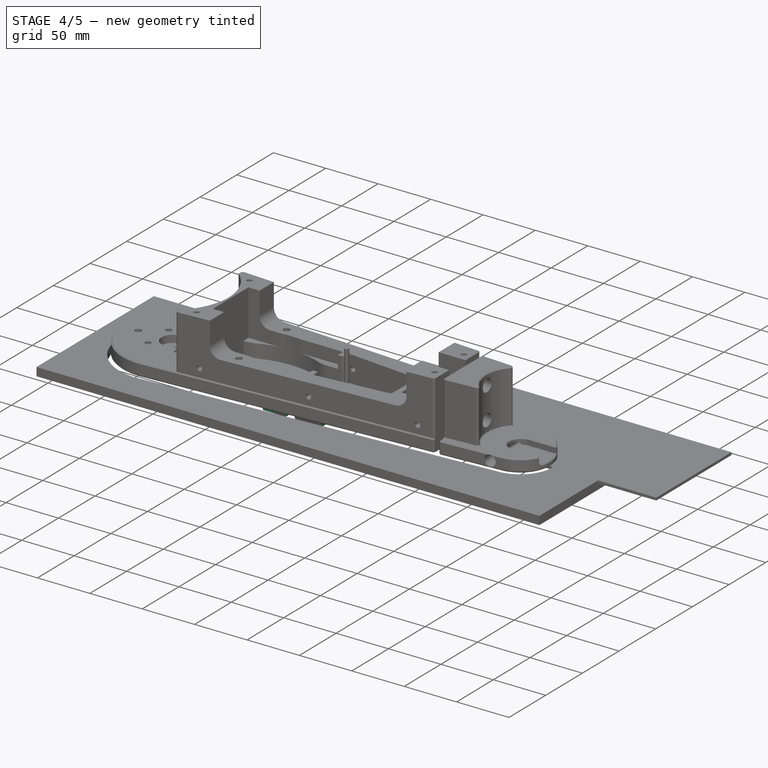
[diagram: stage 4 of 5 — iso view after this stage's code; geometry added in this stage tinted green]
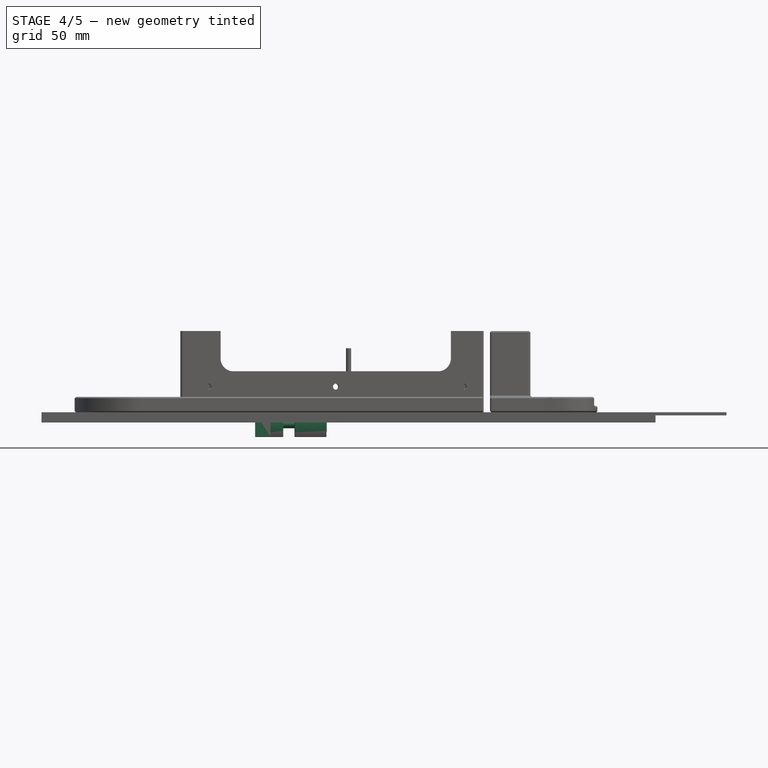
[diagram: stage 4 of 5 — front view after this stage's code; geometry added in this stage tinted green]
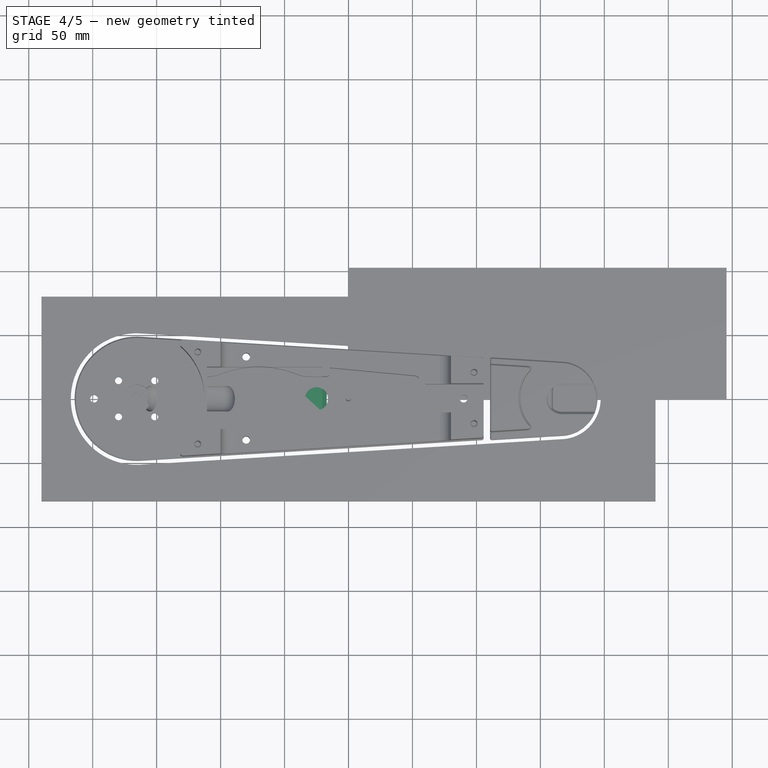
[diagram: stage 4 of 5 — top view after this stage's code; geometry added in this stage tinted green]
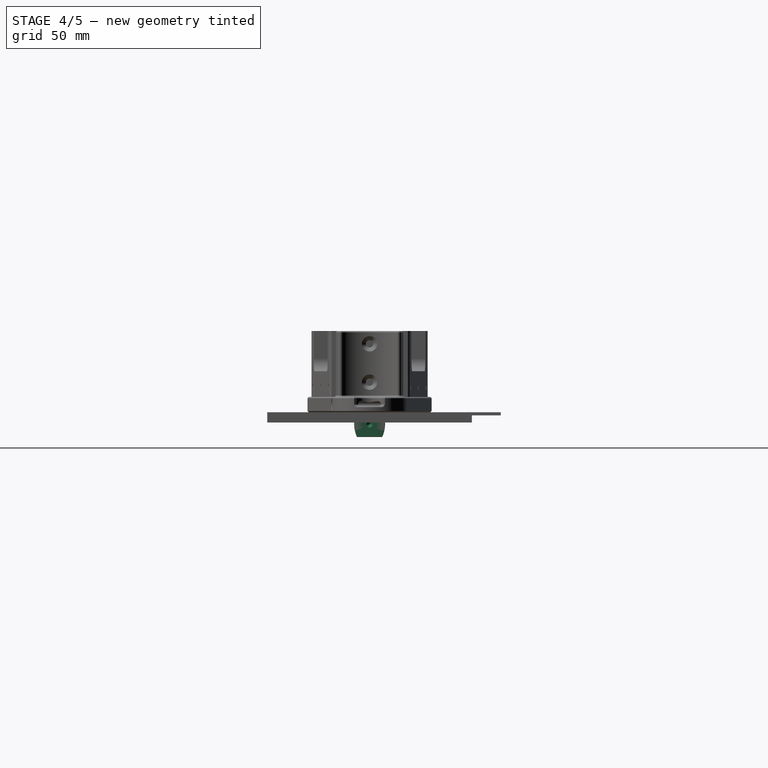
[diagram: stage 4 of 5 — right view after this stage's code; geometry added in this stage tinted green]
FEATURE [PartDesign::Body] Body034  label="Spring"
  AllowCompound = false
  Group = -> [Sketch132,AdditiveHelix]
  Origin = -> Origin053
  Placement = pos=(-53.5,0,-9.5) rot=(0,0,1;0rad)
  Tip = -> AdditiveHelix
FEATURE [Part::FeaturePython] Screw001  label="M6x40-Parafuso"  # WARN: FeaturePython — macro-defined, semantics opaque (R4)
  Diameter = 6
  Invert = false
  LeftHanded = false
  Length = 13
  LengthCustom = 40
  MatchOuter = false
  OffsetAngle = 0
  Placement = pos=(-17,0,-9.5) rot=(0,1,0;1.5708rad)
  Thread = false
  Type = 50
FEATURE [Part::FeaturePython] Washer  label="M6-Arruela"  # WARN: FeaturePython — macro-defined, semantics opaque (R4)
  Diameter = 7
  Invert = false
  MatchOuter = false
  OffsetAngle = 0
  Placement = pos=(-34,0,-9.5) rot=(0,1,0;1.5708rad)
  Type = 10
FEATURE [PartDesign::Hole] Hole028  label="Lever axis hole enlarge one side"
  BaseFeature = -> Pocket049
  CustomThreadClearance = 0
  Depth = 20
  DepthType = 0
  Diameter = 5.5
  DrillForDepth = false
  DrillPoint = 1
  DrillPointAngle = 118
  HoleCutCountersinkAngle = 90
  HoleCutCustomValues = false
  HoleCutDepth = 0
  HoleCutDiameter = 11
  HoleCutType = 2
  ModelThread = false
  Placement = pos=(0,0,0) rot=(1,0,0;1.5708rad)
  Profile = -> Sketch135
  Suppressed = false
  Tapered = false
  TaperedAngle = 90
  ThreadClass = 0
  ThreadDepth = 20
  ThreadDepthType = 0
  ThreadDirection = 0
  ThreadFit = 0
  ThreadSize = 0
  ThreadType = 0
  Threaded = false
  UseCustomThreadClearance = false
  expr: Depth = <<Pad040>>.Length / 2
FEATURE [PartDesign::Pocket] Pocket050  label="Guide rail pocket"
  BaseFeature = -> Hole028
  Direction = (-1,0,0)
  Length = 5
  Length2 = 5
  Placement = pos=(0,0,0) rot=(1,0,0;1.5708rad)
  Profile = -> Sketch137
  ReferenceAxis = -> Sketch137 [N_Axis]
  Refine = true
  Reversed = true
  Suppressed = false
  Type = 1
FEATURE [PartDesign::SubShapeBinder] Binder025
  BindCopyOnChange = 0
  BindMode = 0
  ClaimChildren = false
  Context = -> Part [Body035.Binder025.]
  Fuse = false
  MakeFace = true
  Offset = -0.15
  OffsetFill = false
  OffsetIntersection = false
  OffsetJoinType = 0
  OffsetOpenResult = false
  PartialLoad = false
  Placement = pos=(-12,0,0) rot=(0,0,1;0rad)
  Relative = true
  Support = -> [Body033[Sketch137.]]
  _Version = 2
FEATURE [Sketcher::SketchObject] Sketch136
  ArcFitTolerance = 0
  AttachmentOffset = pos=(0,0,22) rot=(0,0,1;0rad)
  AttachmentSupport = -> [Binder025]
  ExternalGeometry = -> [Binder025]
  FullyConstrained = true
  MakeInternals = false
  MapMode = 5
  Placement = pos=(-51,0,0) rot=(0.57735,0.57735,0.57735;2.0944rad)
  expr: .AttachmentOffset.Base.z = <<Pad041>>.Length
  sketch-geometry (2):
    g0: Circle CenterX=0 CenterY=-9.25 CenterZ=0 NormalX=0 NormalY=0 NormalZ=1 AngleXU=0 Radius=3.5
    g1: LineSegment [constr] StartX=0 StartY=0.85 StartZ=0 EndX=0 EndY=-19.35 EndZ=0
  constraints (6):
    c: PointOnObject(g0,g-2)
    c: Diameter(g0) = 7
    c: PointOnObject(g1,g-2)
    c: Symmetric(g1,g1,g0)
    c: PointOnObject(g1,g-3)
    c: PointOnObject(g1,g-4)
FEATURE [PartDesign::Pad] Pad041
  Direction = (1,0,0)
  Length = 22
  Length2 = 10
  Placement = pos=(-12,0,0) rot=(0,0,1;0rad)
  Profile = -> Binder025
  Suppressed = false
  Type = 0
FEATURE [PartDesign::Hole] Hole029
  BaseFeature = -> Pad041
  CustomThreadClearance = 0
  Depth = 75.2743
  DepthType = 1
  Diameter = 6
  DrillForDepth = false
  DrillPoint = 1
  DrillPointAngle = 118
  HoleCutCountersinkAngle = 90
  HoleCutCustomValues = false
  HoleCutDepth = 4
  HoleCutDiameter = 16
  HoleCutType = 1
  ModelThread = false
  Placement = pos=(-12,0,0) rot=(0,0,1;0rad)
  Profile = -> Sketch136
  Suppressed = false
  Tapered = false
  TaperedAngle = 90
  ThreadClass = 0
  ThreadDepth = 75.2743
  ThreadDepthType = 0
  ThreadDirection = 0
  ThreadFit = 0
  ThreadSize = 0
  ThreadType = 0
  Threaded = false
  UseCustomThreadClearance = false
FEATURE [PartDesign::Chamfer] Chamfer004
  Angle = 45
  Base = -> Hole029 [?Face7]
  BaseFeature = -> Hole029
  ChamferType = 0
  FlipDirection = false
  Placement = pos=(-12,0,0) rot=(0,0,1;0rad)
  Size = 0.3
  Size2 = 1
  SupportTransform = false
  Suppressed = false
  UseAllEdges = true
FEATURE [PartDesign::SubShapeBinder] Binder002
  BindCopyOnChange = 0
  BindMode = 0
  ClaimChildren = false
  Context = -> Part [Body036.Binder002.]
  Fuse = false
  MakeFace = true
  Offset = -0.15
  OffsetFill = false
  OffsetIntersection = false
  OffsetJoinType = 0
  OffsetOpenResult = false
  PartialLoad = false
  Placement = pos=(18.8,0,0) rot=(0,0,1;0rad)
  Relative = true
  Support = -> [Body033[Sketch137.]]
  _Version = 2
FEATURE [Sketcher::SketchObject] Sketch139
  ArcFitTolerance = 0
  AttachmentSupport = -> [XZ_Plane055]
  ExternalGeometry = -> [Binder002]
  FullyConstrained = true
  MakeInternals = false
  MapMode = 5
  Placement = pos=(0,0,0) rot=(1,0,0;1.5708rad)
  expr: Constraints[10] = <<Pad042>>.Length
  sketch-geometry (6):
    g0: LineSegment StartX=-20.2567 StartY=0.492788 StartZ=0 EndX=-17.2 EndY=-3.15 EndZ=0
    g1: ArcOfCircle CenterX=-21.0227 CenterY=-0.15 CenterZ=0 NormalX=0 NormalY=0 NormalZ=1 AngleXU=0 Radius=1 StartAngle=0.698132 EndAngle=1.5708
    g2: LineSegment StartX=-21.0227 StartY=0.85 StartZ=0 EndX=-42.2 EndY=0.85 EndZ=0
    g3: LineSegment StartX=-42.2 StartY=0.85 StartZ=0 EndX=-42.2 EndY=10.85 EndZ=0
    g4: LineSegment StartX=-42.2 StartY=10.85 StartZ=0 EndX=-17.2 EndY=10.85 EndZ=0
    g5: LineSegment StartX=-17.2 StartY=10.85 StartZ=0 EndX=-17.2 EndY=-3.15 EndZ=0
  constraints (16):
    c: Tangent(g1,g0) = 1.5708
    c: Radius(g1) = 1
    c: Coincident(g3,g2)
    c: Vertical(g3)
    c: Coincident(g4,g3)
    c: Horizontal(g4)
    c: Coincident(g5,g4)
    c: Coincident(g5,g0)
    c: Vertical(g5)
    c: Horizontal(g2)
    c: DistanceX(g4,g4) = 25
    c: Angle(g5,g0) = 0.698132
    c: DistanceY(g3,g3) = 10
    c: DistanceY(g5,g5) = 14
    c: Tangent(g2,g1) = -1.5708
    c: Coincident(g2,g-3)
FEATURE [PartDesign::SubShapeBinder] Binder026
  BindCopyOnChange = 0
  BindMode = 0
  ClaimChildren = false
  Context = -> Part [Body036.Binder026.]
  Fuse = false
  MakeFace = true
  OffsetFill = false
  OffsetIntersection = false
  OffsetJoinType = 0
  OffsetOpenResult = false
  PartialLoad = false
  Placement = pos=(-25,0,0) rot=(0,0,1;0rad)
  Relative = true
  Support = -> [Sketch020]
  _Version = 2
  expr: .Placement.Base.x = -<<Pad042>>.Length
FEATURE [PartDesign::Pad] Pad042
  Direction = (1,0,0)
  Length = 25
  Length2 = 10
  Placement = pos=(18.8,0,0) rot=(0,0,1;0rad)
  Profile = -> Binder002
  Suppressed = false
  Type = 0
FEATURE [PartDesign::Hole] Hole031  label="Hole004"
  BaseFeature = -> Pad042
  CustomThreadClearance = 0
  Depth = 71.9523
  DepthType = 1
  Diameter = 5
  DrillForDepth = false
  DrillPoint = 0
  DrillPointAngle = 118
  HoleCutCountersinkAngle = 90
  HoleCutCustomValues = false
  HoleCutDepth = 10
  HoleCutDiameter = 16.1
  HoleCutType = 1
  ModelThread = false
  Placement = pos=(18.8,0,0) rot=(0,0,1;0rad)
  Profile = -> Binder026
  Reversed = true
  Suppressed = false
  Tapered = false
  TaperedAngle = 90
  ThreadClass = 0
  ThreadDepth = 71.9523
  ThreadDepthType = 0
  ThreadDirection = 0
  ThreadFit = 0
  ThreadSize = 0
  ThreadType = 0
  Threaded = false
  UseCustomThreadClearance = false
FEATURE [PartDesign::Chamfer] Chamfer002
  Angle = 45
  Base = -> Hole031 [?Face7]
  BaseFeature = -> Hole031
  ChamferType = 0
  FlipDirection = false
  Placement = pos=(18.8,0,0) rot=(0,0,1;0rad)
  Size = 0.3
  Size2 = 1
  SupportTransform = false
  Suppressed = false
  UseAllEdges = true
FEATURE [Sketcher::SketchObject] Sketch020
  ArcFitTolerance = 0
  AttachmentOffset = pos=(0,0,25) rot=(0,0,1;0rad)
  AttachmentSupport = -> [Binder002]
  ExternalGeometry = -> [Binder002]
  FullyConstrained = true
  MakeInternals = false
  MapMode = 5
  Placement = pos=(-17.2,0,0) rot=(0.57735,0.57735,0.57735;2.0944rad)
  expr: .AttachmentOffset.Base.z = <<Pad042>>.Length
  sketch-geometry (2):
    g0: Circle CenterX=0 CenterY=-9.25 CenterZ=0 NormalX=0 NormalY=0 NormalZ=1 AngleXU=0 Radius=3.5
    g1: LineSegment [constr] StartX=0 StartY=0.85 StartZ=0 EndX=0 EndY=-19.35 EndZ=0
  constraints (6):
    c: PointOnObject(g0,g-2)
    c: Diameter(g0) = 7
    c: PointOnObject(g1,g-2)
    c: Symmetric(g1,g1,g0)
    c: PointOnObject(g1,g-3)
    c: PointOnObject(g1,g-4)
FEATURE [PartDesign::Hole] Hole030  label="Hole003"
  BaseFeature = -> Chamfer002
  CustomThreadClearance = 0
  Depth = 73.3723
  DepthType = 1
  Diameter = 5
  DrillForDepth = false
  DrillPoint = 1
  DrillPointAngle = 118
  HoleCutCountersinkAngle = 90
  HoleCutCustomValues = false
  HoleCutDepth = 1.6
  HoleCutDiameter = 10.5
  HoleCutType = 2
  ModelThread = false
  Placement = pos=(18.8,0,0) rot=(0,0,1;0rad)
  Profile = -> Sketch020
  Suppressed = false
  Tapered = false
  TaperedAngle = 90
  ThreadClass = 0
  ThreadDepth = 73.3723
  ThreadDepthType = 0
  ThreadDirection = 0
  ThreadFit = 0
  ThreadSize = 0
  ThreadType = 0
  Threaded = false
  UseCustomThreadClearance = false
FEATURE [PartDesign::Pocket] Pocket052  label="Pocket009"
  BaseFeature = -> Hole030
  Direction = (0,1,-2e-16)
  Length = 5
  Length2 = 5
  Midplane = true
  Placement = pos=(18.8,0,0) rot=(0,0,1;0rad)
  Profile = -> Sketch139
  ReferenceAxis = -> Sketch139 [N_Axis]
  Suppressed = false
  Type = 1
FEATURE [PartDesign::Body] Body036  label="Pushblock inner"
  AllowCompound = false
  Group = -> [Pad042,Binder002,Hole031,Chamfer002,Binder026,Sketch020,Hole030,Sketch139,Pocket052]
  Origin = -> Origin055
  Tip = -> Pocket052
FEATURE [Sketcher::SketchObject] Sketch021
  ArcFitTolerance = 0
  AttachmentOffset = pos=(0,0,-61) rot=(0,0,1;0rad)
  AttachmentSupport = -> [YZ_Plane054]
  FullyConstrained = true
  MakeInternals = false
  MapMode = 5
  Placement = pos=(-61,0,0) rot=(0.57735,0.57735,0.57735;2.0944rad)
  expr: .AttachmentOffset.Base.z = <<Guide rail sketch>>.Placement.Base.x
  expr: Constraints[16] = Pad039.Length - 2 * <<Pocket048>>.Length
  sketch-geometry (8):
    g0: LineSegment StartX=-50 StartY=50 StartZ=0 EndX=-50 EndY=-50 EndZ=0
    g1: LineSegment StartX=-50 StartY=-50 StartZ=0 EndX=50 EndY=-50 EndZ=0
    g2: LineSegment StartX=50 StartY=-50 StartZ=0 EndX=50 EndY=50 EndZ=0
    g3: LineSegment StartX=50 StartY=50 StartZ=0 EndX=-50 EndY=50 EndZ=0
    g4: LineSegment StartX=-10 StartY=30 StartZ=0 EndX=-10 EndY=-30 EndZ=0
    g5: LineSegment StartX=-10 StartY=-30 StartZ=0 EndX=10 EndY=-30 EndZ=0
    g6: LineSegment StartX=10 StartY=-30 StartZ=0 EndX=10 EndY=30 EndZ=0
    g7: LineSegment StartX=10 StartY=30 StartZ=0 EndX=-10 EndY=30 EndZ=0
  constraints (22):
    c: Coincident(g0,g1)
    c: Coincident(g1,g2)
    c: Coincident(g2,g3)
    c: Coincident(g3,g0)
    c: Vertical(g0)
    c: Vertical(g2)
    c: Horizontal(g1)
    c: Horizontal(g3)
    c: Coincident(g4,g5)
    c: Coincident(g5,g6)
    c: Coincident(g6,g7)
    c: Coincident(g7,g4)
    c: Vertical(g4)
    c: Vertical(g6)
    c: Horizontal(g5)
    c: Horizontal(g7)
    c: DistanceX(g7,g7) = 20
    c: Symmetric(g4,g5,g-1)
    c: DistanceY(g6,g6) = 60
    c: Symmetric(g0,g2,g-1)
    c: DistanceY(g6,g2) = 20
    c: Equal(g3,g0)
FEATURE [PartDesign::Pocket] Pocket053  label="Pocket010"
  BaseFeature = -> Chamfer004
  Direction = (-1,0,0)
  Length = 5
  Length2 = 5
  Placement = pos=(-12,0,0) rot=(0,0,1;0rad)
  Profile = -> Sketch021
  ReferenceAxis = -> Sketch021 [N_Axis]
  Suppressed = false
  Type = 1
FEATURE [PartDesign::Body] Body035  label="Pushblock"
  AllowCompound = false
  Group = -> [Pad041,Binder025,Sketch136,Hole029,Chamfer004,Sketch021,Pocket053]
  Origin = -> Origin054
  Tip = -> Pocket053
FEATURE [Sketcher::SketchObject] Sketch140  label="Carriage mounting holes sketch"
  ArcFitTolerance = 0
  AttachmentSupport = -> [XZ_Plane052]
  FullyConstrained = true
  MakeInternals = false
  MapMode = 5
  Placement = pos=(0,0,0) rot=(1,0,0;1.5708rad)
  sketch-geometry (2):
    g0: Circle CenterX=-10 CenterY=-15 CenterZ=0 NormalX=0 NormalY=0 NormalZ=1 AngleXU=0 Radius=2.5
    g1: Circle CenterX=-50 CenterY=-15 CenterZ=0 NormalX=0 NormalY=0 NormalZ=1 AngleXU=0 Radius=2.5
  constraints (6):
    c: Equal(g1,g0)
    c: Diameter(g0) = 5
    c: DistanceX(g1,g-1) = 50
    c: Horizontal(g1,g0)
    c: DistanceY(g1,g-1) = 15
    c: DistanceX(g1,g0) = 40
FEATURE [PartDesign::Line] DatumLine  label="AxisDatumLine001"
  AttacherType = Attacher::AttachEngineLine
  AttachmentSupport = -> [Y_Axis050]
  Length = 20
  MapMode = 24
  Placement = pos=(0,0,0) rot=(1,0,0;1.5708rad)
  ResizeMode = 0
FEATURE [PartDesign::Body] Body031  label="Lever"
  AllowCompound = false
  Group = -> [Sketch130,Sketch131,Pad039,Pocket048,Sketch133,Pocket047,Mirrored009,DatumLine]
  Origin = -> Origin050
  Tip = -> Mirrored009
FEATURE [PartDesign::Line] DatumLine001  label="AxisDatumLine"
  AttacherType = Attacher::AttachEngineLine
  AttachmentSupport = -> [Y_Axis052]
  Length = 20
  MapMode = 24
  Placement = pos=(0,0,0) rot=(1,0,0;1.5708rad)
  ResizeMode = 0
FEATURE [PartDesign::Line] DatumLine002  label="GuideRailDatumLine"
  AttacherType = Attacher::AttachEngineLine
  AttachmentOffset = pos=(0,-9.5,0) rot=(0,0,1;0rad)
  AttachmentSupport = -> [X_Axis052]
  Length = 20
  MapMode = 29
  Placement = pos=(0,0,-9.5) rot=(0.57735,0.57735,0.57735;2.0944rad)
  ResizeMode = 0
FEATURE [Sketcher::SketchObject] Sketch023  label="Bearing sketch001"
  ArcFitTolerance = 0
  AttachmentSupport = -> [XZ_Plane057]
  FullyConstrained = true
  MakeInternals = false
  MapMode = 5
  Placement = pos=(0,0,0) rot=(1,0,0;1.5708rad)
  sketch-geometry (2):
    g0: Circle CenterX=0 CenterY=0 CenterZ=0 NormalX=0 NormalY=0 NormalZ=1 AngleXU=0 Radius=4.5
    g1: Circle CenterX=0 CenterY=0 CenterZ=0 NormalX=0 NormalY=0 NormalZ=1 AngleXU=0 Radius=2.5
  constraints (4):
    c: Diameter(g0) = 9
    c: Coincident(g0,g-1)
    c: Coincident(g1,g0)
    c: Diameter(g1) = 5
FEATURE [PartDesign::Pad] Pad043
  Direction = (0,-1,2e-16)
  Length = 3
  Length2 = 10
  Midplane = true
  Placement = pos=(0,0,0) rot=(1,0,0;1.5708rad)
  Profile = -> Sketch023
  ReferenceAxis = -> Sketch023 [N_Axis]
  Suppressed = false
  Type = 0
FEATURE [PartDesign::Body] Body037  label="Bearing001"
  AllowCompound = false
  Group = -> [Sketch023,Pad043]
  Origin = -> Origin057
  Placement = pos=(0,8.5,0) rot=(0,0,1;0rad)
  Tip = -> Pad043
FEATURE [PartDesign::Pocket] Pocket054  label="Carriage mounting holes"
  BaseFeature = -> Pocket050
  Direction = (0,1,-2e-16)
  Length = 5
  Length2 = 5
  Midplane = true
  Placement = pos=(0,0,0) rot=(1,0,0;1.5708rad)
  Profile = -> Sketch140
  ReferenceAxis = -> Sketch140 [N_Axis]
  Suppressed = false
  Type = 1
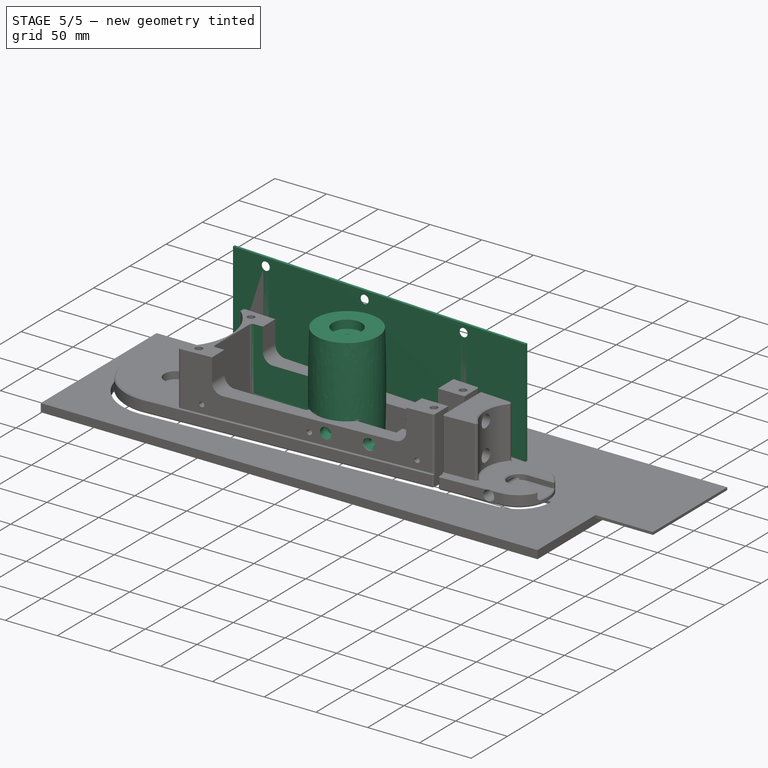
[diagram: stage 5 of 5 — iso view after this stage's code; geometry added in this stage tinted green]
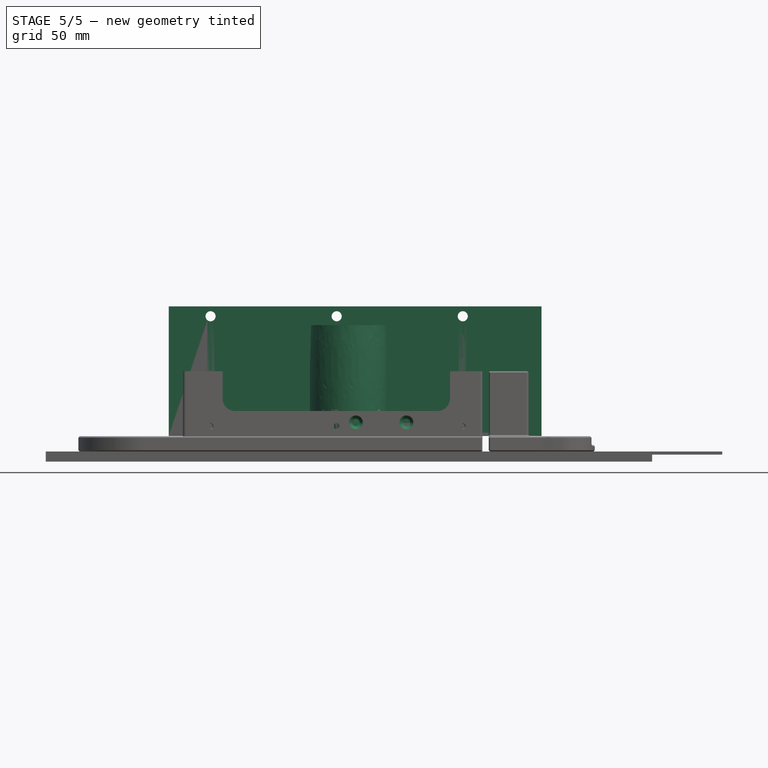
[diagram: stage 5 of 5 — front view after this stage's code; geometry added in this stage tinted green]
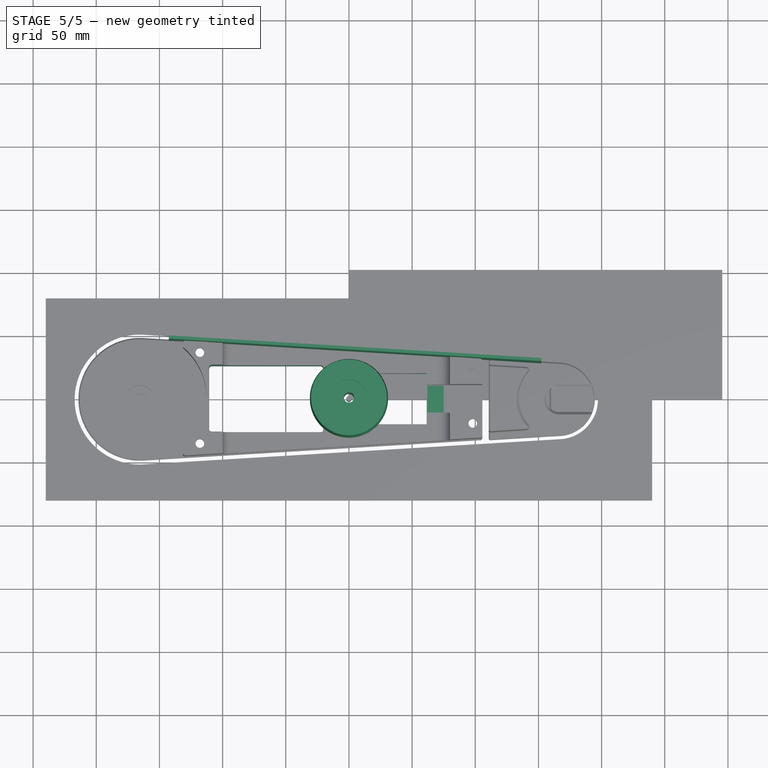
[diagram: stage 5 of 5 — top view after this stage's code; geometry added in this stage tinted green]
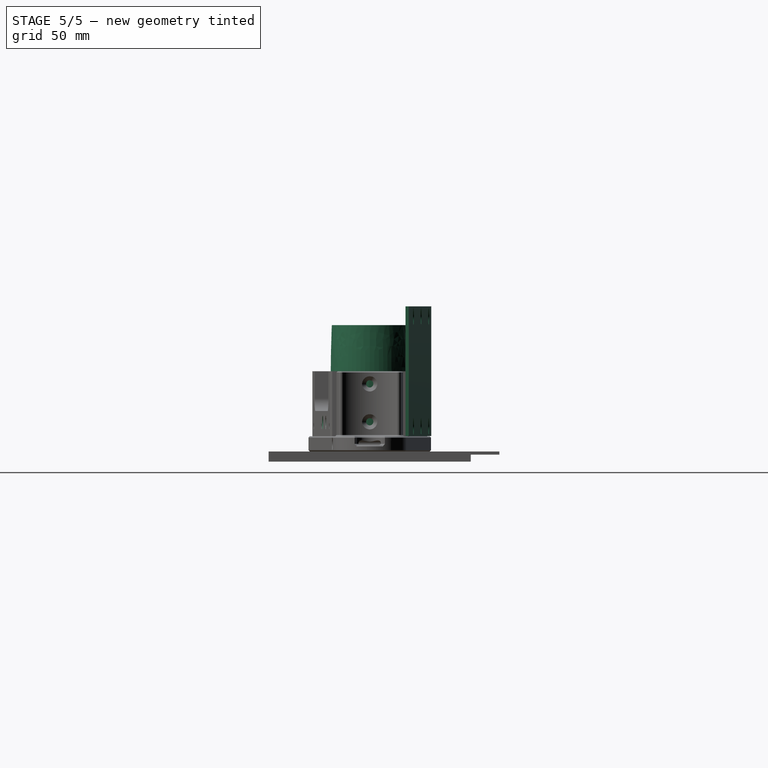
[diagram: stage 5 of 5 — right view after this stage's code; geometry added in this stage tinted green]
FEATURE [PartDesign::SubShapeBinder] Binder007  label="Belt adjustment arm binder"
  BindCopyOnChange = 0
  BindMode = 0
  ClaimChildren = false
  Context = -> Body007 [Binder007.]
  Fuse = false
  MakeFace = true
  OffsetFill = false
  OffsetIntersection = false
  OffsetJoinType = 0
  OffsetOpenResult = false
  PartialLoad = false
  Relative = true
  Support = -> [Body006[Sketch018.]]
  _Version = 2
FEATURE [Sketcher::SketchObject] Sketch024  label="Unit mounting holes middle sketch"
  ArcFitTolerance = 0
  AttachmentOffset = pos=(0,0,32) rot=(0,0,1;0rad)
  AttachmentSupport = -> [XY_Plane007]
  FullyConstrained = true
  MakeInternals = false
  MapMode = 5
  Placement = pos=(0,0,32) rot=(0,0,1;0rad)
  expr: .AttachmentOffset.Base.z = <<Mid section pocket sketch>>.Constraints.bottom
  sketch-geometry (2):
    g0: Circle CenterX=-80 CenterY=32.5 CenterZ=0 NormalX=0 NormalY=0 NormalZ=1 AngleXU=0 Radius=3
    g1: Circle CenterX=-80 CenterY=-32.5 CenterZ=0 NormalX=0 NormalY=0 NormalZ=1 AngleXU=0 Radius=3
  constraints (5):
    c: Diameter(g0) = 6
    c: DistanceX(g0,g-1) = 80  'x'
    c: Equal(g0,g1)
    c: Symmetric(g0,g1,g-1)
    c: DistanceY(g1,g0) = 65
FEATURE [Sketcher::SketchObject] Sketch027
  ArcFitTolerance = 0
  AttachmentSupport = -> [XZ_Plane002]
  FullyConstrained = true
  MakeInternals = false
  MapMode = 5
  Placement = pos=(0,0,0) rot=(1,0,0;1.5708rad)
  expr: Constraints[1] = <<Belt pad>>.Length
  sketch-geometry (9):
    g0: ArcOfCircle CenterX=1219.5 CenterY=50 CenterZ=0 NormalX=0 NormalY=0 NormalZ=1 AngleXU=0 Radius=1250.5 StartAngle=3.1016 EndAngle=3.18159
    g1: LineSegment [constr] StartX=-31 StartY=50 StartZ=0 EndX=-4.1 EndY=50 EndZ=0
    g2: LineSegment StartX=-4.1 StartY=91.95 StartZ=0 EndX=-4.1 EndY=8.05 EndZ=0
    g3: LineSegment StartX=-30 StartY=100 StartZ=0 EndX=-14 EndY=100 EndZ=0
    g4: LineSegment StartX=-14 StartY=100 StartZ=0 EndX=-14 EndY=91.95 EndZ=0
    g5: LineSegment StartX=-14 StartY=91.95 StartZ=0 EndX=-4.1 EndY=91.95 EndZ=0
    g6: LineSegment StartX=-30 StartY=-4.97e-14 StartZ=0 EndX=-14 EndY=0 EndZ=0
    g7: LineSegment StartX=-14 StartY=0 StartZ=0 EndX=-14 EndY=8.05 EndZ=0
    g8: LineSegment StartX=-14 StartY=8.05 StartZ=0 EndX=-4.1 EndY=8.05 EndZ=0
  constraints (28):
    c: PointOnObject(g0,g-1)
    c: DistanceY(g0,g0) = 100
    c: Vertical(g0,g0)
    c: PointOnObject(g1,g0)
    c: Horizontal(g1)
    c: Vertical(g2)
    c: Symmetric(g2,g2,g1)
    c: DistanceX(g1,g0) = 1
    c: Coincident(g3,g0)
    c: Horizontal(g3)
    c: Coincident(g4,g3)
    c: Vertical(g4)
    c: Coincident(g5,g4)
    c: Horizontal(g5)
    c: DistanceX(g0,g-1) = 30
    c: Coincident(g2,g5)
    c: DistanceY(g4,g4) = 8.05
    c: DistanceX(g3,g-1) = 14
    c: Coincident(g6,g0)
    c: PointOnObject(g6,g-1)
    c: Coincident(g7,g6)
    c: Coincident(g8,g7)
    c: Coincident(g8,g2)
    c: Horizontal(g8)
    c: Vertical(g7)
    c: Equal(g7,g4)
    c: Vertical(g4,g7)
    c: DistanceX(g2,g-1) = 4.1
FEATURE [PartDesign::Revolution] Revolution001
  Angle = 360
  Angle2 = 60
  Axis = (1e-16,1e-16,1)
  Base = (0,0,0)
  Placement = pos=(0,0,0) rot=(1,0,0;1.5708rad)
  Profile = -> Sketch027
  ReferenceAxis = -> Z_Axis002
  Suppressed = false
  Type = 0
FEATURE [PartDesign::Body] Body005  label="Belt backing plate"
  AllowCompound = false
  Group = -> [Sketch005,Pad005,Hole]
  Origin = -> Origin005
  Tip = -> Hole
FEATURE [Part::Mirroring] Part__Mirroring  label="Plano-XZ (Mirror #1)"
  Base = (0,0,0)
  MirrorPlane = -> Body005 [Origin005.XZ_Plane005.]
  Normal = (0,-1,-2e-16)
  Source = -> Body005
FEATURE [PartDesign::SubShapeBinder] Binder019  label="Backing plate binder"
  BindCopyOnChange = 0
  BindMode = 0
  ClaimChildren = false
  Context = -> Body007 [Hole024.Binder019.]
  Fuse = false
  MakeFace = true
  OffsetFill = false
  OffsetIntersection = false
  OffsetJoinType = 0
  OffsetOpenResult = false
  PartialLoad = false
  Relative = true
  Support = -> [Body005[Sketch005.]]
  _Version = 2
FEATURE [Sketcher::SketchObject] Sketch112  label="Push block sketch"
  ArcFitTolerance = 0
  AttachmentSupport = -> [XZ_Plane014]
  ExternalGeometry = -> [Sketch045]
  FullyConstrained = true
  MakeInternals = false
  MapMode = 5
  Placement = pos=(0,0,0) rot=(1,0,0;1.5708rad)
  sketch-geometry (4):
    g0: LineSegment StartX=62 StartY=32 StartZ=0 EndX=62 EndY=7 EndZ=0
    g1: LineSegment StartX=62 StartY=7 StartZ=0 EndX=75 EndY=7 EndZ=0
    g2: LineSegment StartX=75 StartY=7 StartZ=0 EndX=75 EndY=32 EndZ=0
    g3: LineSegment StartX=75 StartY=32 StartZ=0 EndX=62 EndY=32 EndZ=0
  constraints (12):
    c: Coincident(g0,g1)
    c: Coincident(g1,g2)
    c: Coincident(g2,g3)
    c: Coincident(g3,g0)
    c: Vertical(g0)
    c: Vertical(g2)
    c: Horizontal(g1)
    c: Horizontal(g3)
    c: DistanceY(g-1,g0) = 7
    c: DistanceX(g1,g1) = 13
    c: DistanceY(g0,g0) = 25
    c: Vertical(g-3,g0)
FEATURE [Sketcher::SketchObject] Sketch113  label="Mid section pocket sketch"
  ArcFitTolerance = 0
  AttachmentSupport = -> [XZ_Plane007]
  FullyConstrained = true
  MakeInternals = false
  MapMode = 5
  Placement = pos=(0,0,0) rot=(1,0,0;1.5708rad)
  expr: .Constraints.bottom = <<Pad007>>.Length + 20 mm
  expr: Constraints[13] = <<Pad007>>.Length + dd.BeltClearance + 50 mm
  sketch-geometry (6):
    g0: LineSegment StartX=-100 StartY=63.5 StartZ=0 EndX=-100 EndY=42 EndZ=0
    g1: ArcOfCircle CenterX=-90 CenterY=42 CenterZ=0 NormalX=0 NormalY=0 NormalZ=1 AngleXU=0 Radius=10 StartAngle=3.14159 EndAngle=4.71239
    g2: LineSegment StartX=-90 StartY=32 StartZ=0 EndX=70 EndY=32 EndZ=0
    g3: ArcOfCircle CenterX=70 CenterY=42 CenterZ=0 NormalX=0 NormalY=0 NormalZ=1 AngleXU=0 Radius=10 StartAngle=4.71239 EndAngle=6.28319
    g4: LineSegment StartX=80 StartY=42 StartZ=0 EndX=80 EndY=63.5 EndZ=0
    g5: LineSegment StartX=80 StartY=63.5 StartZ=0 EndX=-100 EndY=63.5 EndZ=0
  constraints (16):
    c: Vertical(g0)
    c: Tangent(g0,g1) = -1.5708
    c: Horizontal(g2)
    c: Tangent(g2,g3) = -1.5708
    c: Vertical(g4)
    c: Coincident(g4,g5)
    c: Coincident(g5,g0)
    c: Horizontal(g5)
    c: Equal(g1,g3)
    c: Radius(g3) = 10
    c: Tangent(g3,g4) = -1.5708
    c: Tangent(g1,g2) = -1.5708
    c: DistanceY(g-1,g2) = 32  'bottom'
    c: DistanceY(g-1,g4) = 63.5
    c: DistanceX(g0,g-1) = 100
    c: DistanceX(g-1,g3) = 80
FEATURE [PartDesign::SubShapeBinder] Binder020  label="Connecting hole binder"
  BindCopyOnChange = 0
  BindMode = 0
  ClaimChildren = false
  Context = -> Body013 [Binder020.]
  Fuse = false
  MakeFace = true
  OffsetFill = false
  OffsetIntersection = false
  OffsetJoinType = 0
  OffsetOpenResult = false
  PartialLoad = false
  Placement = pos=(0,0,-63.5) rot=(0,0,1;0rad)
  Relative = true
  Support = -> [Body007[Sketch038.]]
  _Version = 2
  expr: .Placement.Base.z = -<<Pad007>>.Length - dd.BeltClearance - 50 mm
FEATURE [Sketcher::SketchObject] Sketch114  label="Cable entry pocket sketch"
  ArcFitTolerance = 0
  AttachmentSupport = -> [XY_Plane007]
  FullyConstrained = true
  MakeInternals = false
  MapMode = 5
  sketch-geometry (1):
    g0: Circle CenterX=-25 CenterY=0 CenterZ=0 NormalX=0 NormalY=0 NormalZ=1 AngleXU=0 Radius=9
  constraints (3):
    c: Diameter(g0) = 18
    c: PointOnObject(g0,g-1)
    c: DistanceX(g0,g-1) = 25
FEATURE [PartDesign::SubShapeBinder] Binder024  label="Panel bottom binder"
  BindCopyOnChange = 0
  BindMode = 0
  ClaimChildren = false
  Context = -> Body013 [Binder024.]
  Fuse = false
  MakeFace = true
  Offset = 0.3
  OffsetFill = false
  OffsetIntersection = false
  OffsetJoinType = 0
  OffsetOpenResult = false
  PartialLoad = false
  Placement = pos=(0,0,3) rot=(0,0,1;0rad)
  Relative = true
  Support = -> [Binder018]
  _Version = 2
FEATURE [Sketcher::SketchObject] Sketch130  label="Sketch"
  ArcFitTolerance = 0
  AttachmentSupport = -> [XZ_Plane050]
  FullyConstrained = true
  MakeInternals = false
  MapMode = 5
  Placement = pos=(0,0,0) rot=(1,0,0;1.5708rad)
  sketch-geometry (15):
    g0: LineSegment StartX=-64 StartY=8 StartZ=0 EndX=11 EndY=8 EndZ=0
    g1: ArcOfCircle CenterX=11 CenterY=7 CenterZ=0 NormalX=0 NormalY=0 NormalZ=1 AngleXU=0 Radius=1 StartAngle=0 EndAngle=1.5708
    g2: LineSegment StartX=12 StartY=7 StartZ=0 EndX=12 EndY=-2.7e-15 EndZ=0
    g3: ArcOfCircle CenterX=5 CenterY=-9e-16 CenterZ=0 NormalX=0 NormalY=0 NormalZ=1 AngleXU=0 Radius=7 StartAngle=5.41052 EndAngle=6.28319
    g4: ArcOfCircle CenterX=-17.9719 CenterY=1.00094 CenterZ=0 NormalX=0 NormalY=0 NormalZ=1 AngleXU=0 Radius=1 StartAngle=6.24828 EndAngle=7.81064
    g5: LineSegment StartX=-17.9286 StartY=2 StartZ=0 EndX=-64.0867 EndY=4.00188 EndZ=0
    g6: ArcOfCircle CenterX=-64 CenterY=6 CenterZ=0 NormalX=0 NormalY=0 NormalZ=1 AngleXU=0 Radius=2 StartAngle=1.5708 EndAngle=4.66905
    g7: Circle CenterX=0 CenterY=0 CenterZ=0 NormalX=0 NormalY=0 NormalZ=1 AngleXU=0 Radius=3.1
    g8: LineSegment StartX=-16.9725 StartY=0.96604 StartZ=0 EndX=-17.0772 EndY=-2.03213 EndZ=0
    g9: LineSegment [constr] StartX=0 StartY=0 StartZ=0 EndX=12 EndY=-2.6e-15 EndZ=0
    g10: LineSegment [constr] StartX=0 StartY=0 StartZ=0 EndX=0 EndY=8 EndZ=0
    g11: LineSegment [constr] StartX=-17.9286 StartY=2 StartZ=0 EndX=-17.9286 EndY=8 EndZ=0
    g12: ArcOfCircle CenterX=-9.78412 CenterY=17.619 CenterZ=0 NormalX=0 NormalY=0 NormalZ=1 AngleXU=0 Radius=30 StartAngle=5.11381 EndAngle=5.41052
    g13: ArcOfCircle CenterX=-7.84005 CenterY=-2.3547 CenterZ=0 NormalX=0 NormalY=0 NormalZ=1 AngleXU=0 Radius=9.24281 StartAngle=3.10669 EndAngle=4.59022
    g14: ArcOfCircle CenterX=-6.374 CenterY=9.58529 CenterZ=0 NormalX=0 NormalY=0 NormalZ=1 AngleXU=0 Radius=21.2725 StartAngle=4.59022 EndAngle=5.11381
  constraints (39):
    c: Tangent(g0,g1) = 1.5708
    c: Tangent(g1,g2) = 1.5708
    c: Tangent(g5,g6) = 1.5708
    c: Tangent(g6,g0) = 1.5708
    c: Radius(g6) = 2
    c: Radius(g1) = 1
    c: Diameter(g7) = 6.2
    c: Distance(g8) = 3
    c: Perpendicular(g2,g9)
    c: PointOnObject(g10,g0)
    c: Perpendicular(g10,g0)
    c: Coincident(g2,g9)
    c: Perpendicular(g0,g2)
    c: Tangent(g3,g2) = 1.5708
    c: Angle(g0,g8) = 1.53589
    c: Coincident(g7,g-1)
    c: Coincident(g9,g10)
    c: Coincident(g9,g7)
    c: Distance(g9) = 12
    c: Tangent(g4,g5) = -1.5708
    c: Distance(g8,g7) = 17
    c: Radius(g4) = 1
    c: Tangent(g4,g8) = 1.5708
    c: Coincident(g11,g4)
    c: PointOnObject(g11,g0)
    c: Perpendicular(g0,g11)
    c: Distance(g11) = 6
    c: Distance(g10) = 8
    c: Distance(g0,g10) = 64
    c: Horizontal(g0)
    c: Tangent(g12,g3) = -1.5708
    c: Tangent(g13,g8) = -1.5708
    c: Angle(g3) = 0.872665
    c: Radius(g3) = 7
    c: Tangent(g14,g13) = -1.5708
    c: Tangent(g14,g12) = -1.5708
    c: Angle(g13) = 1.48353
    c: Angle(g14) = 0.523599
    c: Radius(g12) = 30
FEATURE [Sketcher::SketchObject] Sketch131  label="Sketch001"
  ArcFitTolerance = 0
  AttachmentOffset = pos=(0,0,10) rot=(0,0,1;0rad)
  AttachmentSupport = -> [XZ_Plane050]
  FullyConstrained = true
  MakeInternals = false
  MapMode = 5
  Placement = pos=(0,-10,2.2e-15) rot=(1,0,0;1.5708rad)
  expr: .AttachmentOffset.Base.z = -<<Sketch133>>.Placement.Base.y - <<Pocket048>>.Length
  sketch-geometry (1):
    g0: Circle CenterX=0 CenterY=0 CenterZ=0 NormalX=0 NormalY=0 NormalZ=1 AngleXU=0 Radius=4.6
  constraints (2):
    c: Diameter(g0) = 9.2
    c: Coincident(g0,g-1)
FEATURE [Sketcher::SketchObject] Sketch003  label="Bearing sketch"
  ArcFitTolerance = 0
  AttachmentSupport = -> [XZ_Plane051]
  FullyConstrained = true
  MakeInternals = false
  MapMode = 5
  Placement = pos=(0,0,0) rot=(1,0,0;1.5708rad)
  sketch-geometry (2):
    g0: Circle CenterX=0 CenterY=0 CenterZ=0 NormalX=0 NormalY=0 NormalZ=1 AngleXU=0 Radius=4.5
    g1: Circle CenterX=0 CenterY=0 CenterZ=0 NormalX=0 NormalY=0 NormalZ=1 AngleXU=0 Radius=2.5
  constraints (4):
    c: Diameter(g0) = 9
    c: Coincident(g0,g-1)
    c: Coincident(g1,g0)
    c: Diameter(g1) = 5
FEATURE [PartDesign::Pad] Pad038
  Direction = (0,-1,2e-16)
  Length = 3
  Length2 = 10
  Midplane = true
  Placement = pos=(0,0,0) rot=(1,0,0;1.5708rad)
  Profile = -> Sketch003
  ReferenceAxis = -> Sketch003 [N_Axis]
  Suppressed = false
  Type = 0
FEATURE [Sketcher::SketchObject] Sketch132
  ArcFitTolerance = 0
  AttachmentSupport = -> [XZ_Plane053]
  FullyConstrained = true
  MakeInternals = false
  MapMode = 5
  Placement = pos=(0,0,0) rot=(1,0,0;1.5708rad)
  sketch-geometry (2):
    g0: Circle CenterX=0 CenterY=3.1 CenterZ=0 NormalX=0 NormalY=0 NormalZ=1 AngleXU=0 Radius=0.6
    g1: LineSegment [constr] StartX=0 StartY=2.5 StartZ=0 EndX=0 EndY=0 EndZ=0
  constraints (6):
    c: Diameter(g0) = 1.2
    c: PointOnObject(g0,g-2)
    c: PointOnObject(g1,g0)
    c: Coincident(g1,g-1)
    c: Vertical(g1)
    c: DistanceY(g1,g1) = 2.5
FEATURE [PartDesign::AdditiveHelix] AdditiveHelix
  Angle = 0
  Axis = (1,0,0)
  Base = (0,0,0)
  Growth = 0
  HasBeenEdited = true
  Height = 19
  LeftHanded = false
  Mode = 2
  Outside = false
  Pitch = 2.11111
  Placement = pos=(0,0,0) rot=(1,0,0;1.5708rad)
  Profile = -> Sketch132
  ReferenceAxis = -> Sketch132 [H_Axis]
  Suppressed = false
  Tolerance = 0.1
  Turns = 9
FEATURE [PartDesign::Pocket] Pocket047
  BaseFeature = -> Pocket048
  Direction = (0,1,-2e-16)
  Length = 3
  Length2 = 5
  Placement = pos=(0,0,0) rot=(1,0,0;1.5708rad)
  Profile = -> Sketch131
  ReferenceAxis = -> Sketch131 [N_Axis]
  Suppressed = false
  Type = 0
FEATURE [PartDesign::Mirrored] Mirrored009
  BaseFeature = -> Pocket047
  MirrorPlane = -> XZ_Plane050
  Originals = -> [Pocket047,Pocket048]
  Placement = pos=(0,0,0) rot=(1,0,0;1.5708rad)
  Suppressed = false
  TransformMode = 0
FEATURE [PartDesign::FeatureBase] Clone
  BaseFeature = -> Hole006
  Suppressed = false
FEATURE [PartDesign::Pocket] Pocket012  label="Tensioner pocket"
  BaseFeature = -> Clone
  Direction = (0,1,-2e-16)
  Length = 40.4
  Length2 = 5
  Midplane = true
  Profile = -> Sketch047
  ReferenceAxis = -> Sketch047 [N_Axis]
  Suppressed = false
  Type = 0
FEATURE [PartDesign::SubtractivePipe] SubtractivePipe
  AuxilleryCurvelinear = true
  AuxillerySpineTangent = false
  BaseFeature = -> Pocket012
  Binormal = (0,0,0)
  Mode = 0
  Profile = -> Sketch045
  Spine = -> Sketch046
  SpineTangent = false
  Suppressed = false
  Transformation = 0
  Transition = 0
FEATURE [PartDesign::Pocket] Pocket039  label="Panel pocket"
  BaseFeature = -> SubtractivePipe
  Direction = (0,0,1)
  Length = 3
  Length2 = 5
  Profile = -> Binder018
  Suppressed = false
  TaperAngle = 5
  Type = 0
FEATURE [PartDesign::Pocket] Pocket046  label="Enclosure pocket"
  BaseFeature = -> Pocket039
  Direction = (0,0,-1)
  Length = 5
  Length2 = 5
  Profile = -> Binder024
  Reversed = true
  Suppressed = false
  Type = 1
FEATURE [PartDesign::Pocket] Pocket040  label="Push block pocket"
  BaseFeature = -> Pocket046
  Direction = (0,1,-2e-16)
  Length = 21
  Length2 = 5
  Midplane = true
  Profile = -> Sketch112
  ReferenceAxis = -> Sketch112 [N_Axis]
  Suppressed = false
  Type = 0
FEATURE [PartDesign::Hole] Hole025  label="Connecting holes001"
  BaseFeature = -> Pocket040
  CustomThreadClearance = 0
  Depth = 691.603
  DepthType = 1
  Diameter = 6.8
  DrillForDepth = false
  DrillPoint = 1
  DrillPointAngle = 118
  HoleCutCountersinkAngle = 90
  HoleCutCustomValues = false
  HoleCutDepth = 55
  HoleCutDiameter = 11
  HoleCutType = 3
  ModelThread = false
  Profile = -> Binder020
  Reversed = true
  Suppressed = false
  Tapered = false
  TaperedAngle = 90
  ThreadClass = 0
  ThreadDepth = 691.603
  ThreadDepthType = 0
  ThreadDirection = 0
  ThreadFit = 0
  ThreadSize = 0
  ThreadType = 0
  Threaded = false
  UseCustomThreadClearance = false
FEATURE [PartDesign::Hole] Hole032  label="Lever mounting holes"
  BaseFeature = -> Hole025
  CustomThreadClearance = 0
  Depth = 691.289
  DepthType = 1
  Diameter = 6
  DrillForDepth = false
  DrillPoint = 1
  DrillPointAngle = 118
  HoleCutCountersinkAngle = 90
  HoleCutCustomValues = false
  HoleCutDepth = 7
  HoleCutDiameter = 11
  HoleCutType = 3
  ModelThread = false
  Profile = -> Binder027
  Reversed = true
  Suppressed = false
  Tapered = false
  TaperedAngle = 90
  ThreadClass = 0
  ThreadDepth = 691.289
  ThreadDepthType = 0
  ThreadDirection = 0
  ThreadFit = 0
  ThreadSize = 0
  ThreadType = 0
  Threaded = false
  UseCustomThreadClearance = false
  expr: HoleCutDepth = -<<Lever mounting hole binder>>.Placement.Base.y - 33 mm
FEATURE [PartDesign::Mirrored] Mirrored010  label="Mirror lever mounting holes"
  BaseFeature = -> Hole032
  MirrorPlane = -> XZ_Plane014
  Originals = -> [Hole032]
  Suppressed = false
  TransformMode = 0
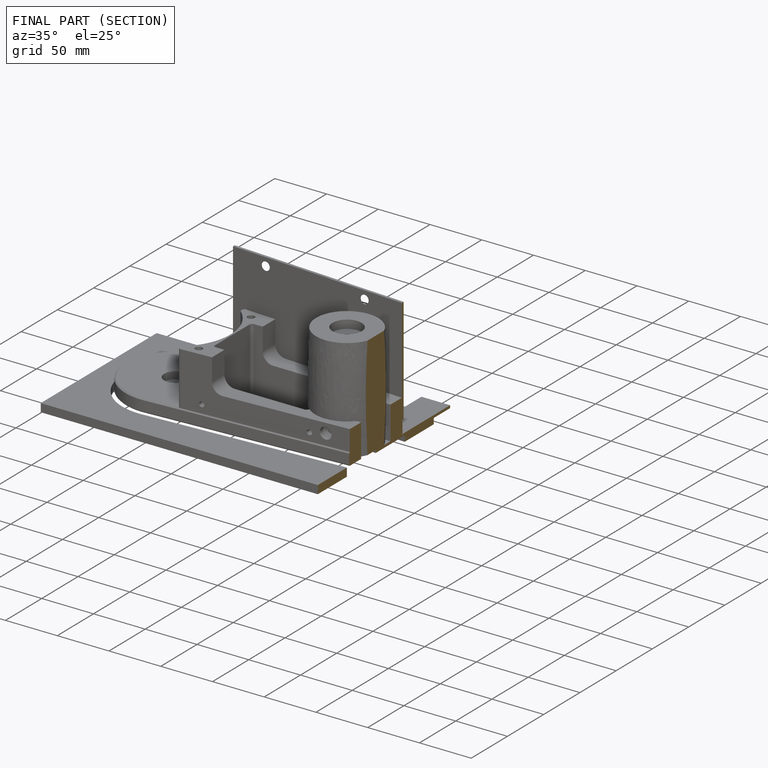
[diagram: finished part — half-section view (interior)]
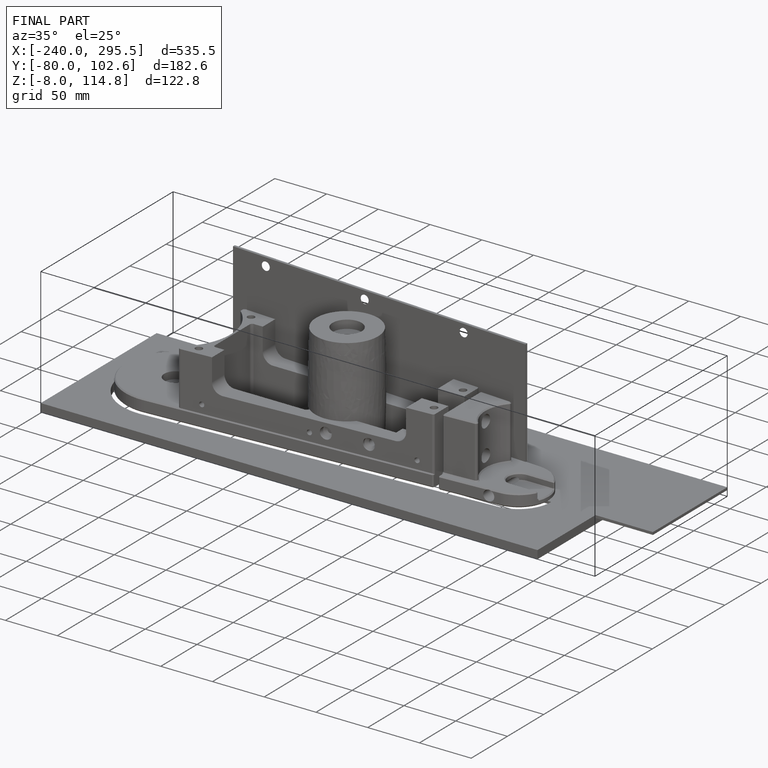
[diagram: finished part — iso view with bounding-box wireframe]
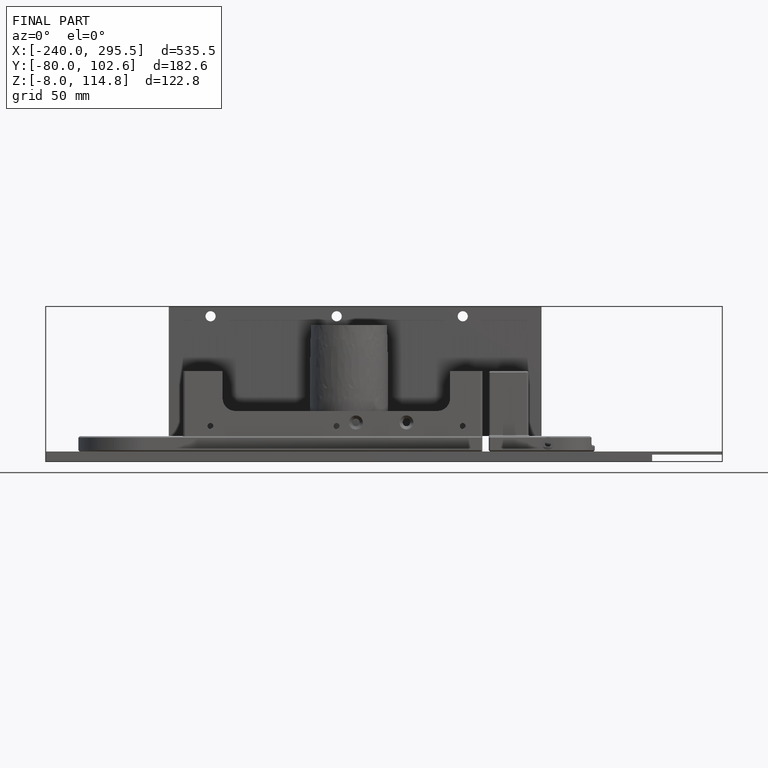
[diagram: finished part — front view with bounding-box wireframe]
